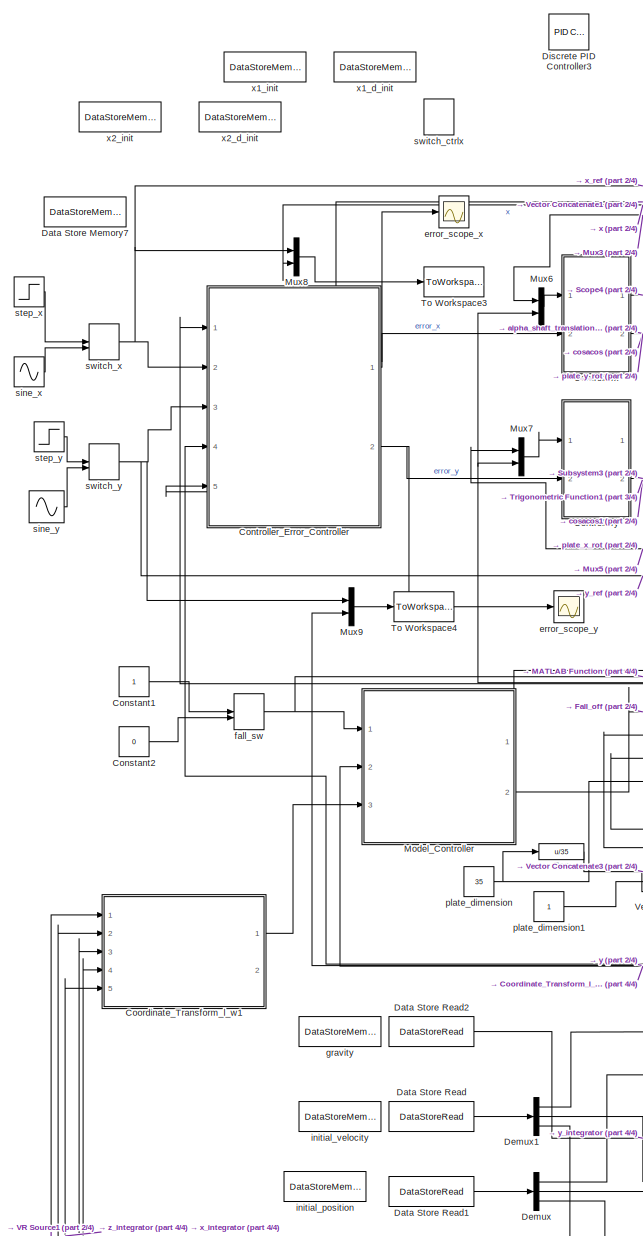
[diagram: root canvas - part 1/4, left side, full height]
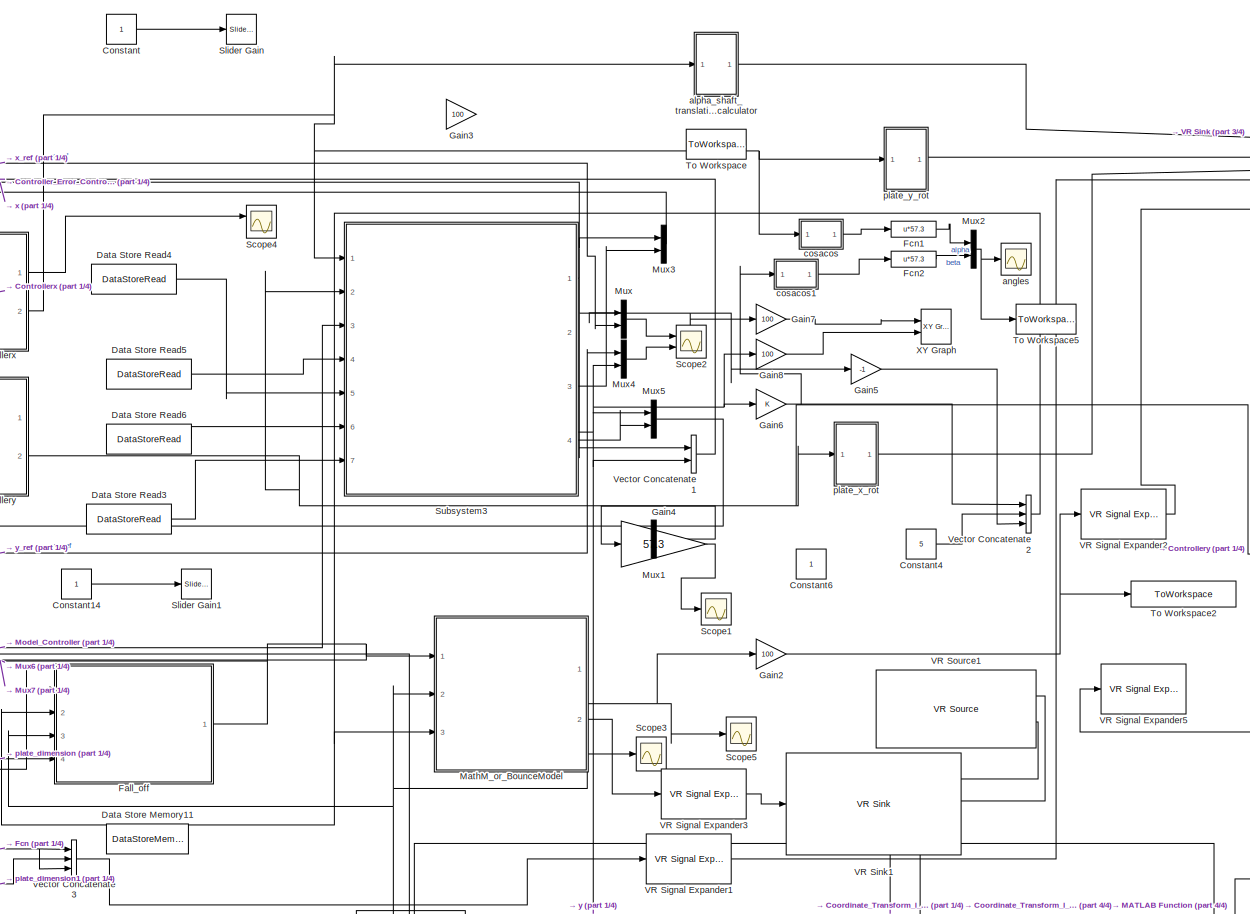
[diagram: root canvas - part 2/4, top center region]
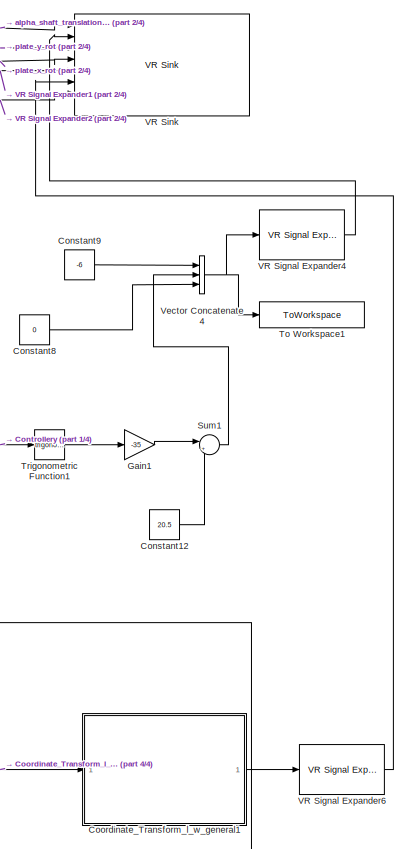
[diagram: root canvas - part 3/4, middle right region]
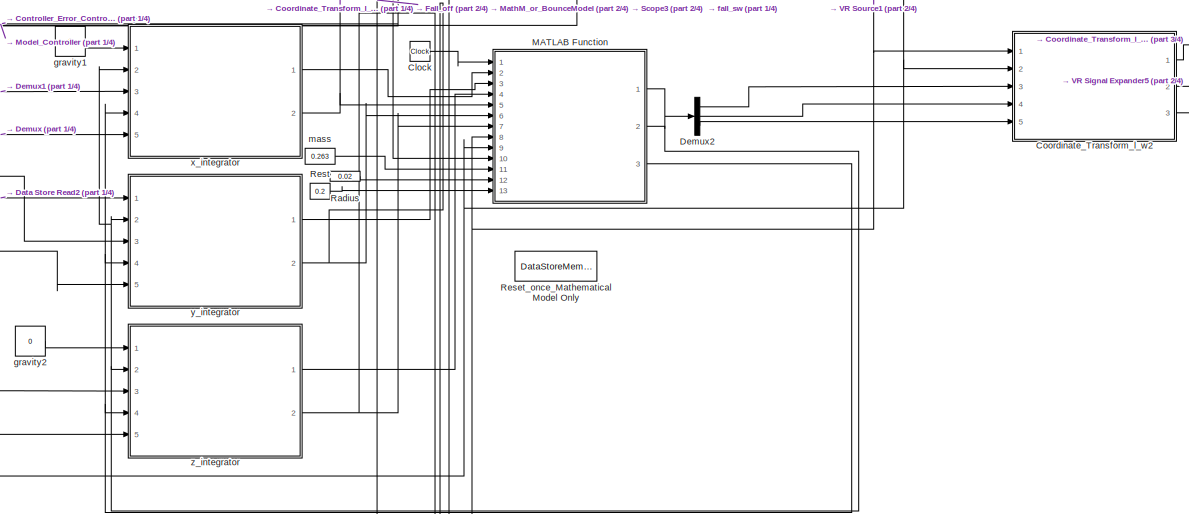
[diagram: root canvas - part 4/4, bottom center region]
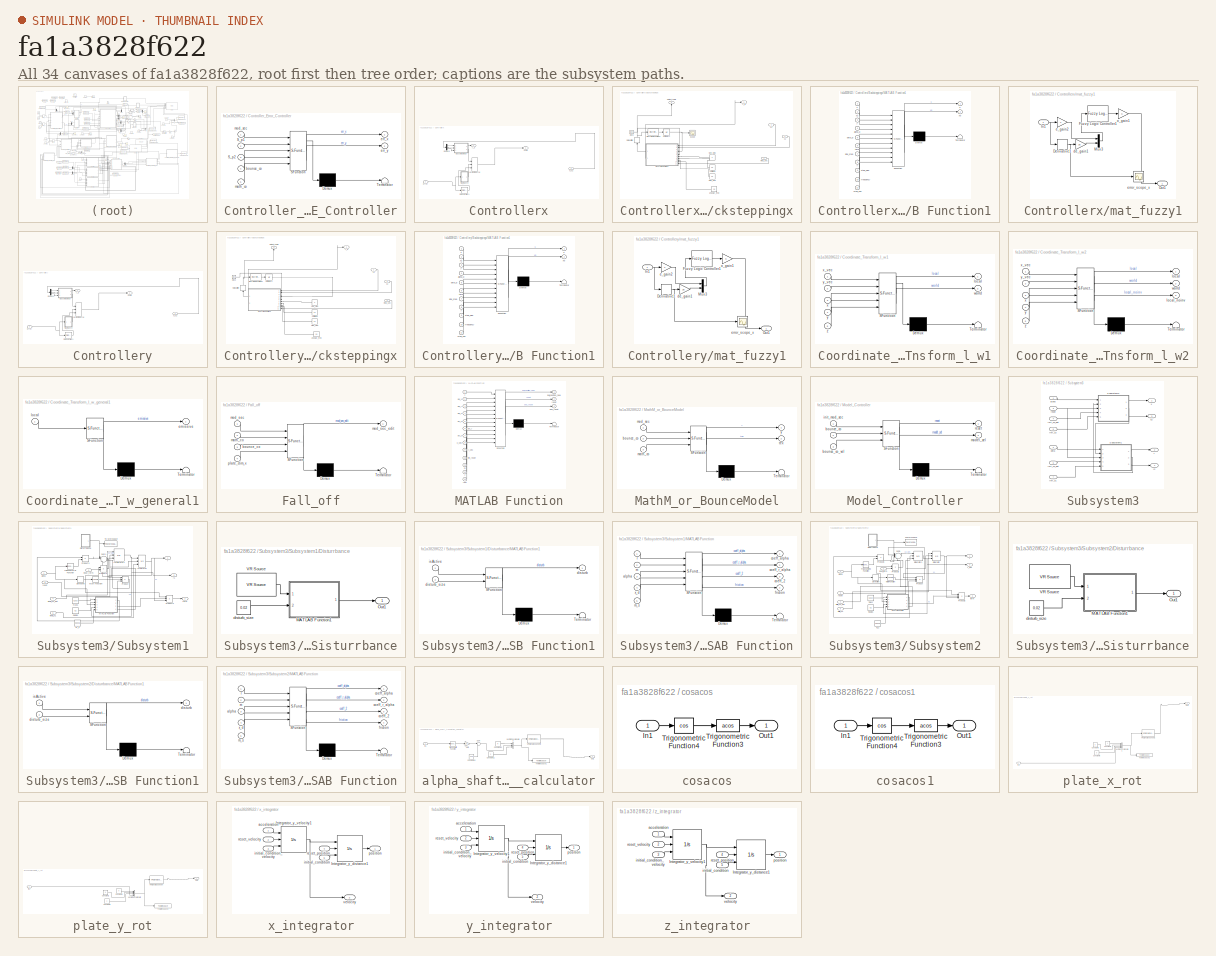
[diagram: thumbnail index - all 34 canvases of the model, root first then tree order]
MODEL slx_fa1a3828f622
KIND model
CONFIG AbsTol = auto
CONFIG FixedStep = T
CONFIG MaxStep = auto
CONFIG MinStep = auto
CONFIG RelTol = 1e-3
CONFIG SampleTimeConstraint = Unconstrained
CONFIG Solver = ode3
CONFIG SolverMode = Auto
CONFIG SolverName = ode3
CONFIG StartTime = 0.0
CONFIG StopTime = 100
BLOCK [Clock] Clock
BLOCK [Constant] Constant
  Commented = on
BLOCK [Constant] Constant1
BLOCK [Constant] Constant12
  Value = 20.5
BLOCK [Constant] Constant14
  Commented = on
BLOCK [Constant] Constant2
  Value = 0
BLOCK [Constant] Constant4
  Value = 5
BLOCK [Constant] Constant6
BLOCK [Constant] Constant8
  Value = 0
BLOCK [Constant] Constant9
  Value = -6
BLOCK [SubSystem] Controller_Error_Controller
  ErrorFcn = Stateflow.Translate.translate
  PermitHierarchicalResolution = ExplicitOnly
  Ports = [5, 2]
  RequestExecContextInheritance = off
  SFBlockType = MATLAB Function
  TreatAsAtomicUnit = on
  Variant = off
BLOCK [Demux] Controller_Error_Controller/ Demux 
  Outputs = 1
  Ports = [1, 1]
BLOCK [S-Function] Controller_Error_Controller/ SFunction 
  EnableBusSupport = on
  FunctionName = sf_sfun
  PortCounts = [5 3]
  Ports = [5, 3]
  SFunctionDeploymentMode = off
  Tag = Stateflow S-Function ballonplate_correctordinates 4
BLOCK [Terminator] Controller_Error_Controller/ Terminator 
BLOCK [Inport] Controller_Error_Controller/S_p1
  IconDisplay = Port number
  Port = 2
BLOCK [Inport] Controller_Error_Controller/S_p2
  IconDisplay = Port number
  Port = 3
BLOCK [Inport] Controller_Error_Controller/bounce_co
  IconDisplay = Port number
  Port = 4
BLOCK [Outport] Controller_Error_Controller/err_x
  IconDisplay = Port number
BLOCK [Outport] Controller_Error_Controller/err_y
  IconDisplay = Port number
  Port = 2
BLOCK [Inport] Controller_Error_Controller/math_co
  IconDisplay = Port number
  Port = 5
BLOCK [Inport] Controller_Error_Controller/mod_sec
  IconDisplay = Port number
BLOCK [SubSystem] Controllerx
  Ports = [2, 2]
  RequestExecContextInheritance = off
  Variant = off
BLOCK [SubSystem] Controllerx/Backsteppingx
  Commented = on
  Ports = [3, 2]
  RequestExecContextInheritance = off
  Variant = off
BLOCK [Constant] Controllerx/Backsteppingx/Amplitude
  Value = 0.1
BLOCK [Clock] Controllerx/Backsteppingx/Clock
BLOCK [Reference] Controllerx/Backsteppingx/Discrete Derivative1  REF=simulink/Discrete/Discrete Derivative
  Ports = [1, 1]
  SourceBlock = simulink/Discrete/Discrete Derivative
  SourceType = Discrete Derivative
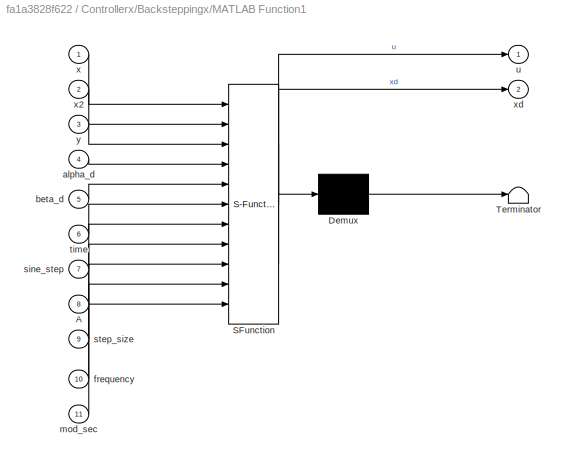
BLOCK [SubSystem] Controllerx/Backsteppingx/MATLAB Function1
  ErrorFcn = Stateflow.Translate.translate
  PermitHierarchicalResolution = ExplicitOnly
  Ports = [11, 2]
  RequestExecContextInheritance = off
  SFBlockType = MATLAB Function
  TreatAsAtomicUnit = on
  Variant = off
BLOCK [Demux] Controllerx/Backsteppingx/MATLAB Function1/ Demux 
  Outputs = 1
  Ports = [1, 1]
BLOCK [S-Function] Controllerx/Backsteppingx/MATLAB Function1/ SFunction 
  EnableBusSupport = on
  FunctionName = sf_sfun
  PortCounts = [11 3]
  Ports = [11, 3]
  SFunctionDeploymentMode = off
  Tag = Stateflow S-Function ballonplate_correctordinates 7
BLOCK [Terminator] Controllerx/Backsteppingx/MATLAB Function1/ Terminator 
BLOCK [Inport] Controllerx/Backsteppingx/MATLAB Function1/A
  IconDisplay = Port number
  Port = 8
BLOCK [Inport] Controllerx/Backsteppingx/MATLAB Function1/alpha_d
  IconDisplay = Port number
  Port = 4
BLOCK [Inport] Controllerx/Backsteppingx/MATLAB Function1/beta_d
  IconDisplay = Port number
  Port = 5
BLOCK [Inport] Controllerx/Backsteppingx/MATLAB Function1/frequency
  IconDisplay = Port number
  Port = 10
BLOCK [Inport] Controllerx/Backsteppingx/MATLAB Function1/mod_sec
  IconDisplay = Port number
  Port = 11
BLOCK [Inport] Controllerx/Backsteppingx/MATLAB Function1/sine_step
  IconDisplay = Port number
  Port = 7
BLOCK [Inport] Controllerx/Backsteppingx/MATLAB Function1/step_size
  IconDisplay = Port number
  Port = 9
BLOCK [Inport] Controllerx/Backsteppingx/MATLAB Function1/time
  IconDisplay = Port number
  Port = 6
BLOCK [Outport] Controllerx/Backsteppingx/MATLAB Function1/u
  IconDisplay = Port number
BLOCK [Inport] Controllerx/Backsteppingx/MATLAB Function1/x
  IconDisplay = Port number
BLOCK [Inport] Controllerx/Backsteppingx/MATLAB Function1/x2
  IconDisplay = Port number
  Port = 2
BLOCK [Outport] Controllerx/Backsteppingx/MATLAB Function1/xd
  IconDisplay = Port number
  Port = 2
BLOCK [Inport] Controllerx/Backsteppingx/MATLAB Function1/y
  IconDisplay = Port number
  Port = 3
BLOCK [Outport] Controllerx/Backsteppingx/Output_Angle
  IconDisplay = Port number
  Port = 2
BLOCK [RateLimiter] Controllerx/Backsteppingx/Rate Limiter
  SampleTimeMode = inherited
BLOCK [Scope] Controllerx/Backsteppingx/Scope
  Ports = [1]
  ScopeSpecificationString = Simulink.scopes.TimeScopeBlockCfg('CurrentConfiguration', extmgr.ConfigurationSet(extmgr.Configuration('Core','General UI',true),extmgr.Configuration('Core','Source UI',true),extmgr.Configuration('Sources','WiredSimulink',true,'DataLoggingVariableName','ScopeData1'),extmgr.Configuration('Visuals','Time Domain',true,'SerializedDisplays',{struct('MinYLimReal','-1.25','MaxYLimReal','1.25','YLabelReal...<+1352ch>
BLOCK [UnitDelay] Controllerx/Backsteppingx/Unit Delay2
  InputProcessing = Elements as channels (sample based)
  SampleTime = -1
BLOCK [Constant] Controllerx/Backsteppingx/angular_freq
  Value = 0.5
BLOCK [Inport] Controllerx/Backsteppingx/mod_sec
  IconDisplay = Port number
  Port = 3
BLOCK [Constant] Controllerx/Backsteppingx/sine_step
  Value = 2
BLOCK [Constant] Controllerx/Backsteppingx/step_size
  Value = 0.1
BLOCK [Inport] Controllerx/Backsteppingx/x1
  IconDisplay = Port number
BLOCK [Inport] Controllerx/Backsteppingx/x2
  IconDisplay = Port number
  Port = 2
BLOCK [Outport] Controllerx/Backsteppingx/y_d
  IconDisplay = Port number
BLOCK [Demux] Controllerx/Demux3
  DisplayOption = bar
  Outputs = 3
  Ports = [1, 3]
BLOCK [Reference] Controllerx/PID Controller1  REF=simulink/Continuous/PID Controller
  Ports = [1, 1]
  SourceBlock = simulink/Continuous/PID Controller
  SourceType = PID 1dof
BLOCK [VariantSource] Controllerx/Variant Source
  Ports = [3, 1]
BLOCK [Outport] Controllerx/angle
  IconDisplay = Port number
  Port = 2
BLOCK [Inport] Controllerx/error
  IconDisplay = Port number
  Port = 2
BLOCK [SubSystem] Controllerx/mat_fuzzy1
  Ports = [1, 1]
  RequestExecContextInheritance = off
  Variant = off
BLOCK [Derivative] Controllerx/mat_fuzzy1/Derivative1
BLOCK [Reference] Controllerx/mat_fuzzy1/Fuzzy Logic Controller1  REF=fuzblock/Fuzzy Logic   (lib defined in mdl_858b3b3e7478)
Controller
  Ports = [1, 1]
  SourceBlock = fuzblock/Fuzzy Logic \nController
  SourceType = FIS
BLOCK [Inport] Controllerx/mat_fuzzy1/In1
  IconDisplay = Port number
BLOCK [Mux] Controllerx/mat_fuzzy1/Mux3
  DisplayOption = bar
  Inputs = 2
  Ports = [2, 1]
BLOCK [Outport] Controllerx/mat_fuzzy1/Out1
  IconDisplay = Port number
BLOCK [Gain] Controllerx/mat_fuzzy1/de_gain1
  Gain = 25
  OutDataTypeStr = Inherit: Inherit via internal rule
  ParamDataTypeStr = Inherit: Inherit via internal rule
  SaturateOnIntegerOverflow = off
BLOCK [Gain] Controllerx/mat_fuzzy1/e_gain2
  Gain = 4
  OutDataTypeStr = Inherit: Inherit via internal rule
  ParamDataTypeStr = Inherit: Inherit via internal rule
  SaturateOnIntegerOverflow = off
BLOCK [Scope] Controllerx/mat_fuzzy1/error_scope_x
  Ports = [1]
  ScopeSpecificationString = Simulink.scopes.TimeScopeBlockCfg('CurrentConfiguration', extmgr.ConfigurationSet(extmgr.Configuration('Core','General UI',true),extmgr.Configuration('Core','Source UI',true),extmgr.Configuration('Sources','WiredSimulink',true,'DataLoggingVariableName','ScopeData3','DataLoggingSaveFormat','StructureWithTime','DataLoggingDecimation','1','DataLoggingDecimateData',true),extmgr.Configuration('Visuals'...<+1731ch>
BLOCK [Gain] Controllerx/mat_fuzzy1/o_gain1
  OutDataTypeStr = Inherit: Inherit via internal rule
  ParamDataTypeStr = Inherit: Inherit via internal rule
  SaturateOnIntegerOverflow = off
BLOCK [Inport] Controllerx/x1x2
  IconDisplay = Port number
BLOCK [Outport] Controllerx/y_d
  IconDisplay = Port number
BLOCK [SubSystem] Controllery
  Ports = [2, 2]
  RequestExecContextInheritance = off
  Variant = off
BLOCK [SubSystem] Controllery/Backsteppingx
  Commented = on
  Ports = [3, 2]
  RequestExecContextInheritance = off
  Variant = off
BLOCK [Constant] Controllery/Backsteppingx/Amplitude
  Value = 0.1
BLOCK [Clock] Controllery/Backsteppingx/Clock
BLOCK [Reference] Controllery/Backsteppingx/Discrete Derivative1  REF=simulink/Discrete/Discrete Derivative
  Ports = [1, 1]
  SourceBlock = simulink/Discrete/Discrete Derivative
  SourceType = Discrete Derivative
BLOCK [SubSystem] Controllery/Backsteppingx/MATLAB Function1
  ErrorFcn = Stateflow.Translate.translate
  PermitHierarchicalResolution = ExplicitOnly
  Ports = [11, 2]
  RequestExecContextInheritance = off
  SFBlockType = MATLAB Function
  TreatAsAtomicUnit = on
  Variant = off
BLOCK [Demux] Controllery/Backsteppingx/MATLAB Function1/ Demux 
  Outputs = 1
  Ports = [1, 1]
BLOCK [S-Function] Controllery/Backsteppingx/MATLAB Function1/ SFunction 
  EnableBusSupport = on
  FunctionName = sf_sfun
  PortCounts = [11 3]
  Ports = [11, 3]
  SFunctionDeploymentMode = off
  Tag = Stateflow S-Function ballonplate_correctordinates 12
BLOCK [Terminator] Controllery/Backsteppingx/MATLAB Function1/ Terminator 
BLOCK [Inport] Controllery/Backsteppingx/MATLAB Function1/A
  IconDisplay = Port number
  Port = 8
BLOCK [Inport] Controllery/Backsteppingx/MATLAB Function1/alpha_d
  IconDisplay = Port number
  Port = 4
BLOCK [Inport] Controllery/Backsteppingx/MATLAB Function1/beta_d
  IconDisplay = Port number
  Port = 5
BLOCK [Inport] Controllery/Backsteppingx/MATLAB Function1/frequency
  IconDisplay = Port number
  Port = 10
BLOCK [Inport] Controllery/Backsteppingx/MATLAB Function1/mod_sec
  IconDisplay = Port number
  Port = 11
BLOCK [Inport] Controllery/Backsteppingx/MATLAB Function1/sine_step
  IconDisplay = Port number
  Port = 7
BLOCK [Inport] Controllery/Backsteppingx/MATLAB Function1/step_size
  IconDisplay = Port number
  Port = 9
BLOCK [Inport] Controllery/Backsteppingx/MATLAB Function1/time
  IconDisplay = Port number
  Port = 6
BLOCK [Outport] Controllery/Backsteppingx/MATLAB Function1/u
  IconDisplay = Port number
BLOCK [Inport] Controllery/Backsteppingx/MATLAB Function1/x
  IconDisplay = Port number
BLOCK [Inport] Controllery/Backsteppingx/MATLAB Function1/x2
  IconDisplay = Port number
  Port = 2
BLOCK [Outport] Controllery/Backsteppingx/MATLAB Function1/xd
  IconDisplay = Port number
  Port = 2
BLOCK [Inport] Controllery/Backsteppingx/MATLAB Function1/y
  IconDisplay = Port number
  Port = 3
BLOCK [Outport] Controllery/Backsteppingx/Output_Angle
  IconDisplay = Port number
  Port = 2
BLOCK [RateLimiter] Controllery/Backsteppingx/Rate Limiter
  SampleTimeMode = inherited
BLOCK [UnitDelay] Controllery/Backsteppingx/Unit Delay2
  InputProcessing = Elements as channels (sample based)
  SampleTime = -1
BLOCK [Constant] Controllery/Backsteppingx/angular_freq
  Value = 0.5
BLOCK [Inport] Controllery/Backsteppingx/mod_sec
  IconDisplay = Port number
  Port = 3
BLOCK [Constant] Controllery/Backsteppingx/sine_step
  Value = 3
BLOCK [Constant] Controllery/Backsteppingx/step_size
  Value = 0.1
BLOCK [Inport] Controllery/Backsteppingx/x1
  IconDisplay = Port number
BLOCK [Inport] Controllery/Backsteppingx/x2
  IconDisplay = Port number
  Port = 2
BLOCK [Outport] Controllery/Backsteppingx/y_d
  IconDisplay = Port number
BLOCK [Demux] Controllery/Demux3
  DisplayOption = bar
  Outputs = 3
  Ports = [1, 3]
BLOCK [Reference] Controllery/PID Controller1  REF=simulink/Continuous/PID Controller
  Ports = [1, 1]
  SourceBlock = simulink/Continuous/PID Controller
  SourceType = PID 1dof
BLOCK [VariantSource] Controllery/Variant Source
  Ports = [3, 1]
BLOCK [Outport] Controllery/angle
  IconDisplay = Port number
  Port = 2
BLOCK [Inport] Controllery/error
  IconDisplay = Port number
  Port = 2
BLOCK [SubSystem] Controllery/mat_fuzzy1
  Ports = [1, 1]
  RequestExecContextInheritance = off
  Variant = off
BLOCK [Derivative] Controllery/mat_fuzzy1/Derivative1
BLOCK [Reference] Controllery/mat_fuzzy1/Fuzzy Logic Controller1  REF=fuzblock/Fuzzy Logic   (lib defined in mdl_858b3b3e7478)
Controller
  Ports = [1, 1]
  SourceBlock = fuzblock/Fuzzy Logic \nController
  SourceType = FIS
BLOCK [Inport] Controllery/mat_fuzzy1/In1
  IconDisplay = Port number
BLOCK [Mux] Controllery/mat_fuzzy1/Mux3
  DisplayOption = bar
  Inputs = 2
  Ports = [2, 1]
BLOCK [Outport] Controllery/mat_fuzzy1/Out1
  IconDisplay = Port number
BLOCK [Gain] Controllery/mat_fuzzy1/de_gain1
  Gain = 25
  OutDataTypeStr = Inherit: Inherit via internal rule
  ParamDataTypeStr = Inherit: Inherit via internal rule
  SaturateOnIntegerOverflow = off
BLOCK [Gain] Controllery/mat_fuzzy1/e_gain2
  Gain = 4
  OutDataTypeStr = Inherit: Inherit via internal rule
  ParamDataTypeStr = Inherit: Inherit via internal rule
  SaturateOnIntegerOverflow = off
BLOCK [Scope] Controllery/mat_fuzzy1/error_scope_x
  Ports = [1]
  ScopeSpecificationString = Simulink.scopes.TimeScopeBlockCfg('CurrentConfiguration', extmgr.ConfigurationSet(extmgr.Configuration('Core','General UI',true),extmgr.Configuration('Core','Source UI',true),extmgr.Configuration('Sources','WiredSimulink',true,'DataLoggingVariableName','ScopeData3','DataLoggingSaveFormat','StructureWithTime','DataLoggingDecimation','1','DataLoggingDecimateData',true),extmgr.Configuration('Visuals'...<+1731ch>
BLOCK [Gain] Controllery/mat_fuzzy1/o_gain1
  OutDataTypeStr = Inherit: Inherit via internal rule
  ParamDataTypeStr = Inherit: Inherit via internal rule
  SaturateOnIntegerOverflow = off
BLOCK [Inport] Controllery/x1x2
  IconDisplay = Port number
BLOCK [Outport] Controllery/y_d
  IconDisplay = Port number
BLOCK [SubSystem] Coordinate_Transform_l_w1
  ErrorFcn = Stateflow.Translate.translate
  PermitHierarchicalResolution = ExplicitOnly
  Ports = [5, 2]
  RequestExecContextInheritance = off
  SFBlockType = MATLAB Function
  TreatAsAtomicUnit = on
  Variant = off
BLOCK [Demux] Coordinate_Transform_l_w1/ Demux 
  Outputs = 1
  Ports = [1, 1]
BLOCK [S-Function] Coordinate_Transform_l_w1/ SFunction 
  EnableBusSupport = on
  FunctionName = sf_sfun
  PortCounts = [5 3]
  Ports = [5, 3]
  SFunctionDeploymentMode = off
  Tag = Stateflow S-Function ballonplate_correctordinates 10
BLOCK [Terminator] Coordinate_Transform_l_w1/ Terminator 
BLOCK [Outport] Coordinate_Transform_l_w1/local
  IconDisplay = Port number
BLOCK [Outport] Coordinate_Transform_l_w1/world
  IconDisplay = Port number
  Port = 2
BLOCK [Inport] Coordinate_Transform_l_w1/x
  IconDisplay = Port number
  Port = 3
BLOCK [Inport] Coordinate_Transform_l_w1/x_vec
  IconDisplay = Port number
BLOCK [Inport] Coordinate_Transform_l_w1/y
  IconDisplay = Port number
  Port = 4
BLOCK [Inport] Coordinate_Transform_l_w1/y_vec
  IconDisplay = Port number
  Port = 2
BLOCK [Inport] Coordinate_Transform_l_w1/z
  IconDisplay = Port number
  Port = 5
BLOCK [SubSystem] Coordinate_Transform_l_w2
  ErrorFcn = Stateflow.Translate.translate
  PermitHierarchicalResolution = ExplicitOnly
  Ports = [5, 3]
  RequestExecContextInheritance = off
  SFBlockType = MATLAB Function
  TreatAsAtomicUnit = on
  Variant = off
BLOCK [Demux] Coordinate_Transform_l_w2/ Demux 
  Outputs = 1
  Ports = [1, 1]
BLOCK [S-Function] Coordinate_Transform_l_w2/ SFunction 
  EnableBusSupport = on
  FunctionName = sf_sfun
  PortCounts = [5 4]
  Ports = [5, 4]
  SFunctionDeploymentMode = off
  Tag = Stateflow S-Function ballonplate_correctordinates 6
BLOCK [Terminator] Coordinate_Transform_l_w2/ Terminator 
BLOCK [Outport] Coordinate_Transform_l_w2/local
  IconDisplay = Port number
BLOCK [Outport] Coordinate_Transform_l_w2/local_noinv
  IconDisplay = Port number
  Port = 3
BLOCK [Outport] Coordinate_Transform_l_w2/world
  IconDisplay = Port number
  Port = 2
BLOCK [Inport] Coordinate_Transform_l_w2/x
  IconDisplay = Port number
  Port = 3
BLOCK [Inport] Coordinate_Transform_l_w2/x_vec
  IconDisplay = Port number
BLOCK [Inport] Coordinate_Transform_l_w2/y
  IconDisplay = Port number
  Port = 4
BLOCK [Inport] Coordinate_Transform_l_w2/y_vec
  IconDisplay = Port number
  Port = 2
BLOCK [Inport] Coordinate_Transform_l_w2/z
  IconDisplay = Port number
  Port = 5
BLOCK [SubSystem] Coordinate_Transform_l_w_general1
  ErrorFcn = Stateflow.Translate.translate
  PermitHierarchicalResolution = ExplicitOnly
  Ports = [1, 1]
  RequestExecContextInheritance = off
  SFBlockType = MATLAB Function
  TreatAsAtomicUnit = on
  Variant = off
BLOCK [Demux] Coordinate_Transform_l_w_general1/ Demux 
  Outputs = 1
  Ports = [1, 1]
BLOCK [S-Function] Coordinate_Transform_l_w_general1/ SFunction 
  EnableBusSupport = on
  FunctionName = sf_sfun
  PortCounts = [1 2]
  Ports = [1, 2]
  SFunctionDeploymentMode = off
  Tag = Stateflow S-Function ballonplate_correctordinates 8
BLOCK [Terminator] Coordinate_Transform_l_w_general1/ Terminator 
BLOCK [Outport] Coordinate_Transform_l_w_general1/emissive
  IconDisplay = Port number
BLOCK [Inport] Coordinate_Transform_l_w_general1/local
  IconDisplay = Port number
BLOCK [DataStoreMemory] Data Store Memory11
  DataStoreName = falloff_toggle
  OutDataTypeStr = double
  ShowAdditionalParam = off
  SignalType = real
BLOCK [DataStoreMemory] Data Store Memory7
  DataStoreName = count
  OutDataTypeStr = double
  ShowAdditionalParam = off
  SignalType = real
BLOCK [DataStoreRead] Data Store Read
  DataStoreElements = initial_velocity(:)
  DataStoreName = initial_velocity
  Ports = [0, 1]
BLOCK [DataStoreRead] Data Store Read1
  DataStoreElements = initial_position(:)
  DataStoreName = initial_position
  Ports = [0, 1]
BLOCK [DataStoreRead] Data Store Read2
  DataStoreElements = gravity
  DataStoreName = gravity
  Ports = [0, 1]
BLOCK [DataStoreRead] Data Store Read3
  DataStoreElements = x1_init
  DataStoreName = x1_init
  Ports = [0, 1]
BLOCK [DataStoreRead] Data Store Read4
  DataStoreElements = x2_init
  DataStoreName = x2_init
  Ports = [0, 1]
BLOCK [DataStoreRead] Data Store Read5
  DataStoreElements = x2_d_init
  DataStoreName = x2_d_init
  Ports = [0, 1]
BLOCK [DataStoreRead] Data Store Read6
  DataStoreElements = x1_d_init
  DataStoreName = x1_d_init
  Ports = [0, 1]
BLOCK [Demux] Demux
  DisplayOption = bar
  Outputs = 3
  Ports = [1, 3]
BLOCK [Demux] Demux1
  DisplayOption = bar
  Outputs = 3
  Ports = [1, 3]
BLOCK [Demux] Demux2
  DisplayOption = bar
  Outputs = 3
  Ports = [1, 3]
BLOCK [Reference] Discrete PID Controller3  REF=simulink/Continuous/PID Controller
  Commented = on
  Ports = [1, 1]
  SourceBlock = simulink/Continuous/PID Controller
  SourceType = PID 1dof
BLOCK [SubSystem] Fall_off
  ErrorFcn = Stateflow.Translate.translate
  PermitHierarchicalResolution = ExplicitOnly
  Ports = [4, 1]
  RequestExecContextInheritance = off
  SFBlockType = MATLAB Function
  TreatAsAtomicUnit = on
  Variant = off
BLOCK [Demux] Fall_off/ Demux 
  Outputs = 1
  Ports = [1, 1]
BLOCK [S-Function] Fall_off/ SFunction 
  EnableBusSupport = on
  FunctionName = sf_sfun
  PortCounts = [4 2]
  Ports = [4, 2]
  SFunctionDeploymentMode = off
  Tag = Stateflow S-Function ballonplate_correctordinates 11
BLOCK [Terminator] Fall_off/ Terminator 
BLOCK [Inport] Fall_off/bounce_co
  IconDisplay = Port number
  Port = 3
BLOCK [Inport] Fall_off/math_co
  IconDisplay = Port number
  Port = 2
BLOCK [Inport] Fall_off/mod_sec
  IconDisplay = Port number
BLOCK [Outport] Fall_off/mod_sec_edit
  IconDisplay = Port number
BLOCK [Inport] Fall_off/plate_dim_x
  IconDisplay = Port number
  Port = 4
BLOCK [Fcn] Fcn
  Expr = u/35
BLOCK [Fcn] Fcn1
  Expr = u*57.3
BLOCK [Fcn] Fcn2
  Expr = u*57.3
BLOCK [Gain] Gain1
  Gain = -35
  OutDataTypeStr = Inherit: Inherit via internal rule
  ParamDataTypeStr = Inherit: Inherit via internal rule
  SaturateOnIntegerOverflow = off
BLOCK [Gain] Gain2
  Gain = 100
  OutDataTypeStr = Inherit: Inherit via internal rule
  ParamDataTypeStr = Inherit: Inherit via internal rule
  SaturateOnIntegerOverflow = off
BLOCK [Gain] Gain3
  Commented = on
  Gain = 100
  OutDataTypeStr = Inherit: Inherit via internal rule
  ParamDataTypeStr = Inherit: Inherit via internal rule
  SaturateOnIntegerOverflow = off
BLOCK [Gain] Gain4
  Commented = on
  Gain = 57.3
  OutDataTypeStr = Inherit: Inherit via internal rule
  ParamDataTypeStr = Inherit: Inherit via internal rule
  SampleTime = T
  SaturateOnIntegerOverflow = off
BLOCK [Gain] Gain5
  Gain = -1
  OutDataTypeStr = Inherit: Inherit via internal rule
  ParamDataTypeStr = Inherit: Inherit via internal rule
  SaturateOnIntegerOverflow = off
BLOCK [Gain] Gain6
  OutDataTypeStr = Inherit: Inherit via internal rule
  ParamDataTypeStr = Inherit: Inherit via internal rule
  SaturateOnIntegerOverflow = off
BLOCK [Gain] Gain7
  Gain = 100
  OutDataTypeStr = Inherit: Inherit via internal rule
  ParamDataTypeStr = Inherit: Inherit via internal rule
  SaturateOnIntegerOverflow = off
BLOCK [Gain] Gain8
  Gain = 100
  OutDataTypeStr = Inherit: Inherit via internal rule
  ParamDataTypeStr = Inherit: Inherit via internal rule
  SaturateOnIntegerOverflow = off
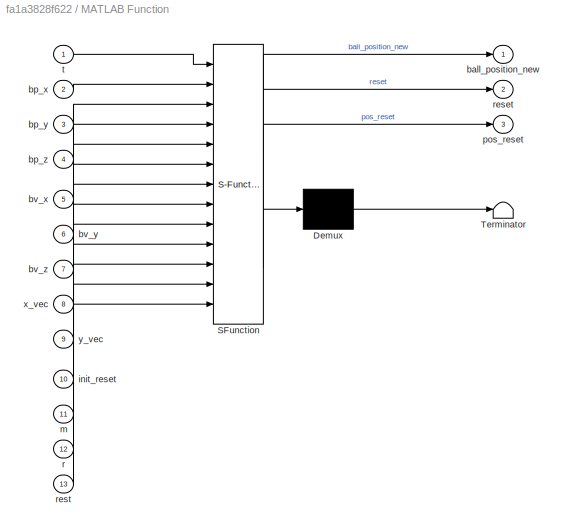
BLOCK [SubSystem] MATLAB Function
  ErrorFcn = Stateflow.Translate.translate
  PermitHierarchicalResolution = ExplicitOnly
  Ports = [13, 3]
  RequestExecContextInheritance = off
  SFBlockType = MATLAB Function
  TreatAsAtomicUnit = on
  Variant = off
BLOCK [Demux] MATLAB Function/ Demux 
  Outputs = 1
  Ports = [1, 1]
BLOCK [S-Function] MATLAB Function/ SFunction 
  EnableBusSupport = on
  FunctionName = sf_sfun
  PortCounts = [13 4]
  Ports = [13, 4]
  SFunctionDeploymentMode = off
  Tag = Stateflow S-Function ballonplate_correctordinates 9
BLOCK [Terminator] MATLAB Function/ Terminator 
BLOCK [Outport] MATLAB Function/ball_position_new
  IconDisplay = Port number
BLOCK [Inport] MATLAB Function/bp_x
  IconDisplay = Port number
  Port = 2
BLOCK [Inport] MATLAB Function/bp_y
  IconDisplay = Port number
  Port = 3
BLOCK [Inport] MATLAB Function/bp_z
  IconDisplay = Port number
  Port = 4
BLOCK [Inport] MATLAB Function/bv_x
  IconDisplay = Port number
  Port = 5
BLOCK [Inport] MATLAB Function/bv_y
  IconDisplay = Port number
  Port = 6
BLOCK [Inport] MATLAB Function/bv_z
  IconDisplay = Port number
  Port = 7
BLOCK [Inport] MATLAB Function/init_reset
  IconDisplay = Port number
  Port = 10
BLOCK [Inport] MATLAB Function/m
  IconDisplay = Port number
  Port = 11
BLOCK [Outport] MATLAB Function/pos_reset
  IconDisplay = Port number
  Port = 3
BLOCK [Inport] MATLAB Function/r
  IconDisplay = Port number
  Port = 12
BLOCK [Outport] MATLAB Function/reset
  IconDisplay = Port number
  Port = 2
BLOCK [Inport] MATLAB Function/rest
  IconDisplay = Port number
  Port = 13
BLOCK [Inport] MATLAB Function/t
  IconDisplay = Port number
BLOCK [Inport] MATLAB Function/x_vec
  IconDisplay = Port number
  Port = 8
BLOCK [Inport] MATLAB Function/y_vec
  IconDisplay = Port number
  Port = 9
BLOCK [SubSystem] MathM_or_BounceModel
  ErrorFcn = Stateflow.Translate.translate
  PermitHierarchicalResolution = ExplicitOnly
  Ports = [3, 2]
  RequestExecContextInheritance = off
  SFBlockType = MATLAB Function
  TreatAsAtomicUnit = on
  Variant = off
BLOCK [Demux] MathM_or_BounceModel/ Demux 
  Outputs = 1
  Ports = [1, 1]
BLOCK [S-Function] MathM_or_BounceModel/ SFunction 
  EnableBusSupport = on
  FunctionName = sf_sfun
  PortCounts = [3 3]
  Ports = [3, 3]
  SFunctionDeploymentMode = off
  Tag = Stateflow S-Function ballonplate_correctordinates 3
BLOCK [Terminator] MathM_or_BounceModel/ Terminator 
BLOCK [Inport] MathM_or_BounceModel/bounce_co
  IconDisplay = Port number
  Port = 2
BLOCK [Inport] MathM_or_BounceModel/math_co
  IconDisplay = Port number
  Port = 3
BLOCK [Inport] MathM_or_BounceModel/mod_sec
  IconDisplay = Port number
BLOCK [Outport] MathM_or_BounceModel/tex
  IconDisplay = Port number
  Port = 2
BLOCK [Outport] MathM_or_BounceModel/y
  IconDisplay = Port number
BLOCK [SubSystem] Model_Controller
  ErrorFcn = Stateflow.Translate.translate
  PermitHierarchicalResolution = ExplicitOnly
  Ports = [3, 2]
  RequestExecContextInheritance = off
  SFBlockType = MATLAB Function
  TreatAsAtomicUnit = on
  Variant = off
BLOCK [Demux] Model_Controller/ Demux 
  Outputs = 1
  Ports = [1, 1]
BLOCK [S-Function] Model_Controller/ SFunction 
  EnableBusSupport = on
  FunctionName = sf_sfun
  PortCounts = [3 3]
  Ports = [3, 3]
  SFunctionDeploymentMode = off
  Tag = Stateflow S-Function ballonplate_correctordinates 5
BLOCK [Terminator] Model_Controller/ Terminator 
BLOCK [Inport] Model_Controller/bounce_co
  IconDisplay = Port number
  Port = 2
BLOCK [Inport] Model_Controller/bounce_co_vel
  IconDisplay = Port number
  Port = 3
BLOCK [Inport] Model_Controller/init_mod_sec
  IconDisplay = Port number
BLOCK [Outport] Model_Controller/model_sel
  IconDisplay = Port number
  Port = 2
BLOCK [Outport] Model_Controller/reset
  IconDisplay = Port number
BLOCK [Mux] Mux
  DisplayOption = bar
  Inputs = 2
  Ports = [2, 1]
BLOCK [Mux] Mux1
  Commented = on
  DisplayOption = bar
  Inputs = 2
  Ports = [2, 1]
BLOCK [Mux] Mux2
  DisplayOption = bar
  Inputs = 2
  Ports = [2, 1]
BLOCK [Mux] Mux3
  DisplayOption = bar
  Inputs = 2
  Ports = [2, 1]
BLOCK [Mux] Mux4
  DisplayOption = bar
  Inputs = 2
  Ports = [2, 1]
BLOCK [Mux] Mux5
  DisplayOption = bar
  Inputs = 2
  Ports = [2, 1]
BLOCK [Mux] Mux6
  DisplayOption = bar
  Inputs = 2
  Ports = [2, 1]
BLOCK [Mux] Mux7
  DisplayOption = bar
  Inputs = 2
  Ports = [2, 1]
BLOCK [Mux] Mux8
  DisplayOption = bar
  Inputs = 2
  Ports = [2, 1]
BLOCK [Mux] Mux9
  DisplayOption = bar
  Inputs = 2
  Ports = [2, 1]
BLOCK [Constant] Radius
  Value = 0.02
BLOCK [DataStoreMemory] Reset_once_Mathematical Model Only
  DataStoreName = count_mm
  OutDataTypeStr = double
  ShowAdditionalParam = off
  SignalType = real
BLOCK [Constant] Rest
  Value = 0.2
BLOCK [Scope] Scope1
  Commented = on
  Ports = [1]
  ScopeSpecificationString = Simulink.scopes.TimeScopeBlockCfg('CurrentConfiguration', extmgr.ConfigurationSet(extmgr.Configuration('Core','General UI',true),extmgr.Configuration('Core','Source UI',true),extmgr.Configuration('Sources','WiredSimulink',true,'DataLoggingVariableName','ScopeData1','DataLoggingSaveFormat','StructureWithTime','DataLoggingLimitDataPoints',true,'DataLoggingDecimation','1','DataLoggingDecimateData',tr...<+1638ch>
BLOCK [Scope] Scope2
  NumInputPorts = 2
  Ports = [2]
  ScopeSpecificationString = Simulink.scopes.TimeScopeBlockCfg('CurrentConfiguration', extmgr.ConfigurationSet(extmgr.Configuration('Core','General UI',true),extmgr.Configuration('Core','Source UI',true),extmgr.Configuration('Sources','WiredSimulink',true,'DataLoggingVariableName','ScopeData2','DataLoggingSaveFormat','StructureWithTime','DataLoggingDecimation','1','DataLoggingDecimateData',true),extmgr.Configuration('Visuals'...<+2379ch>
BLOCK [Scope] Scope3
  Ports = [1]
  ScopeSpecificationString = Simulink.scopes.TimeScopeBlockCfg('CurrentConfiguration', extmgr.ConfigurationSet(extmgr.Configuration('Core','General UI',true),extmgr.Configuration('Core','Source UI',true),extmgr.Configuration('Sources','WiredSimulink',true,'DataLoggingSaveFormat','StructureWithTime','DataLoggingLimitDataPoints',true,'DataLoggingDecimation','1','DataLoggingDecimateData',true),extmgr.Configuration('Visuals','Tim...<+1782ch>
BLOCK [Scope] Scope4
  NumInputPorts = 2
  Ports = [2]
  ScopeSpecificationString = Simulink.scopes.TimeScopeBlockCfg('CurrentConfiguration', extmgr.ConfigurationSet(extmgr.Configuration('Core','General UI',true),extmgr.Configuration('Core','Source UI',true),extmgr.Configuration('Sources','WiredSimulink',true,'DataLoggingVariableName','ScopeData1','DataLoggingSaveFormat','StructureWithTime','DataLoggingDecimation','1','DataLoggingDecimateData',true),extmgr.Configuration('Visuals'...<+2396ch>
BLOCK [Scope] Scope5
  Ports = [1]
  ScopeSpecificationString = Simulink.scopes.TimeScopeBlockCfg('CurrentConfiguration', extmgr.ConfigurationSet(extmgr.Configuration('Core','General UI',true),extmgr.Configuration('Core','Source UI',true),extmgr.Configuration('Sources','WiredSimulink',true,'DataLoggingSaveFormat','StructureWithTime','DataLoggingDecimation','1','DataLoggingDecimateData',true,'DataLoggingVariableName','ScopeData1'),extmgr.Configuration('Visuals'...<+1760ch>
BLOCK [Reference] Slider Gain  REF=simulink/Math
Operations/Slider
Gain
  Commented = on
  Ports = [1, 1]
  SourceBlock = simulink/Math\nOperations/Slider\nGain
  SourceType = Slider Gain
BLOCK [Reference] Slider Gain1  REF=simulink/Math
Operations/Slider
Gain
  Commented = on
  Ports = [1, 1]
  SourceBlock = simulink/Math\nOperations/Slider\nGain
  SourceType = Slider Gain
BLOCK [SubSystem] Subsystem3
  Ports = [7, 4]
  RequestExecContextInheritance = off
  Variant = off
BLOCK [SubSystem] Subsystem3/Subsystem1
  Ports = [5, 3]
  RequestExecContextInheritance = off
  Variant = off
BLOCK [Derivative] Subsystem3/Subsystem1/Derivative
BLOCK [SubSystem] Subsystem3/Subsystem1/Disturrbance
  Ports = [0, 1]
  RequestExecContextInheritance = off
  Variant = off
BLOCK [SubSystem] Subsystem3/Subsystem1/Disturrbance/MATLAB Function1
  ErrorFcn = Stateflow.Translate.translate
  PermitHierarchicalResolution = ExplicitOnly
  Ports = [2, 1]
  RequestExecContextInheritance = off
  SFBlockType = MATLAB Function
  TreatAsAtomicUnit = on
  Variant = off
BLOCK [Demux] Subsystem3/Subsystem1/Disturrbance/MATLAB Function1/ Demux 
  Outputs = 1
  Ports = [1, 1]
BLOCK [S-Function] Subsystem3/Subsystem1/Disturrbance/MATLAB Function1/ SFunction 
  EnableBusSupport = on
  FunctionName = sf_sfun
  PortCounts = [2 2]
  Ports = [2, 2]
  SFunctionDeploymentMode = off
  Tag = Stateflow S-Function ballonplate_correctordinates 14
BLOCK [Terminator] Subsystem3/Subsystem1/Disturrbance/MATLAB Function1/ Terminator 
BLOCK [Outport] Subsystem3/Subsystem1/Disturrbance/MATLAB Function1/disturb
  IconDisplay = Port number
BLOCK [Inport] Subsystem3/Subsystem1/Disturrbance/MATLAB Function1/disturb_size
  IconDisplay = Port number
  Port = 2
BLOCK [Inport] Subsystem3/Subsystem1/Disturrbance/MATLAB Function1/isActive
  IconDisplay = Port number
BLOCK [Outport] Subsystem3/Subsystem1/Disturrbance/Out1
  IconDisplay = Port number
BLOCK [Reference] Subsystem3/Subsystem1/Disturrbance/VR Source  REF=vrlib/VR Source
  InstantiateOnLoad = on
  Ports = [0, 1]
  SourceBlock = vrlib/VR Source
  SourceType = Virtual Reality Source
BLOCK [Constant] Subsystem3/Subsystem1/Disturrbance/disturb_size
  Value = 0.02
BLOCK [Integrator] Subsystem3/Subsystem1/Integrator
  ExternalReset = rising
  InitialCondition = 0.004427
  InitialConditionSource = external
  Ports = [3, 1]
BLOCK [Integrator] Subsystem3/Subsystem1/Integrator1
  ExternalReset = rising
  InitialConditionSource = external
  Ports = [3, 1]
BLOCK [SubSystem] Subsystem3/Subsystem1/MATLAB Function
  ErrorFcn = Stateflow.Translate.translate
  PermitHierarchicalResolution = ExplicitOnly
  Ports = [5, 4]
  RequestExecContextInheritance = off
  SFBlockType = MATLAB Function
  TreatAsAtomicUnit = on
  Variant = off
BLOCK [Demux] Subsystem3/Subsystem1/MATLAB Function/ Demux 
  Outputs = 1
  Ports = [1, 1]
BLOCK [S-Function] Subsystem3/Subsystem1/MATLAB Function/ SFunction 
  EnableBusSupport = on
  FunctionName = sf_sfun
  PortCounts = [5 5]
  Ports = [5, 5]
  SFunctionDeploymentMode = off
  Tag = Stateflow S-Function ballonplate_correctordinates 1
BLOCK [Terminator] Subsystem3/Subsystem1/MATLAB Function/ Terminator 
BLOCK [Inport] Subsystem3/Subsystem1/MATLAB Function/alpha
  IconDisplay = Port number
  Port = 3
BLOCK [Outport] Subsystem3/Subsystem1/MATLAB Function/coeff_2
  IconDisplay = Port number
  Port = 3
BLOCK [Outport] Subsystem3/Subsystem1/MATLAB Function/coeff_alpha
  IconDisplay = Port number
BLOCK [Outport] Subsystem3/Subsystem1/MATLAB Function/coeff_r_alpha
  IconDisplay = Port number
  Port = 2
BLOCK [Outport] Subsystem3/Subsystem1/MATLAB Function/friction
  IconDisplay = Port number
  Port = 4
BLOCK [Inport] Subsystem3/Subsystem1/MATLAB Function/m
  IconDisplay = Port number
  Port = 2
BLOCK [Inport] Subsystem3/Subsystem1/MATLAB Function/m_s
  IconDisplay = Port number
  Port = 5
BLOCK [Inport] Subsystem3/Subsystem1/MATLAB Function/r
  IconDisplay = Port number
BLOCK [Inport] Subsystem3/Subsystem1/MATLAB Function/x_d
  IconDisplay = Port number
  Port = 4
BLOCK [Math] Subsystem3/Subsystem1/Math Function
  Operator = square
  Ports = [1, 1]
BLOCK [Product] Subsystem3/Subsystem1/Product
  InputSameDT = off
  Inputs = 3
  OutDataTypeStr = Inherit: Inherit via internal rule
  Ports = [3, 1]
  RndMeth = Floor
  SaturateOnIntegerOverflow = off
BLOCK [Product] Subsystem3/Subsystem1/Product1
  InputSameDT = off
  OutDataTypeStr = Inherit: Inherit via internal rule
  Ports = [2, 1]
  RndMeth = Floor
  SaturateOnIntegerOverflow = off
BLOCK [Product] Subsystem3/Subsystem1/Product2
  InputSameDT = off
  Inputs = 3
  OutDataTypeStr = Inherit: Inherit via internal rule
  Ports = [3, 1]
  RndMeth = Floor
  SaturateOnIntegerOverflow = off
BLOCK [Product] Subsystem3/Subsystem1/Product3
  InputSameDT = off
  OutDataTypeStr = Inherit: Inherit via internal rule
  Ports = [2, 1]
  RndMeth = Floor
  SaturateOnIntegerOverflow = off
BLOCK [Constant] Subsystem3/Subsystem1/Radius
  Value = 0.2
BLOCK [Sum] Subsystem3/Subsystem1/Sum1
  IconShape = round
  InputSameDT = off
  Inputs = |+++++
  OutDataTypeStr = Inherit: Inherit via internal rule
  Ports = [5, 1]
  SaturateOnIntegerOverflow = off
BLOCK [ToWorkspace] Subsystem3/Subsystem1/To Workspace
  FixptAsFi = on
  MaxDataPoints = inf
  Ports = [1]
  SampleTime = -1
  Save2DSignal = 3-D array (concatenate along third dimension)
  SaveFormat = Timeseries
  VariableName = disturb_y
BLOCK [Trigonometry] Subsystem3/Subsystem1/Trigonometric Function
  Ports = [1, 1]
BLOCK [Inport] Subsystem3/Subsystem1/alpha
  IconDisplay = Port number
BLOCK [Inport] Subsystem3/Subsystem1/initial_x1
  IconDisplay = Port number
  Port = 5
BLOCK [Inport] Subsystem3/Subsystem1/initial_x1_dot
  IconDisplay = Port number
  Port = 4
BLOCK [Inport] Subsystem3/Subsystem1/input_term
  IconDisplay = Port number
  Port = 2
BLOCK [Constant] Subsystem3/Subsystem1/m_s
  Value = 0.0025
BLOCK [Constant] Subsystem3/Subsystem1/mass
  Value = 0.263
BLOCK [Outport] Subsystem3/Subsystem1/r
  IconDisplay = Port number
BLOCK [Outport] Subsystem3/Subsystem1/r1
  IconDisplay = Port number
  Port = 3
BLOCK [Inport] Subsystem3/Subsystem1/reset
  IconDisplay = Port number
  Port = 3
BLOCK [Outport] Subsystem3/Subsystem1/term
  IconDisplay = Port number
  Port = 2
BLOCK [SubSystem] Subsystem3/Subsystem2
  Ports = [5, 3]
  RequestExecContextInheritance = off
  Variant = off
BLOCK [Derivative] Subsystem3/Subsystem2/Derivative
BLOCK [SubSystem] Subsystem3/Subsystem2/Disturrbance
  Ports = [0, 1]
  RequestExecContextInheritance = off
  Variant = off
BLOCK [SubSystem] Subsystem3/Subsystem2/Disturrbance/MATLAB Function1
  ErrorFcn = Stateflow.Translate.translate
  PermitHierarchicalResolution = ExplicitOnly
  Ports = [2, 1]
  RequestExecContextInheritance = off
  SFBlockType = MATLAB Function
  TreatAsAtomicUnit = on
  Variant = off
BLOCK [Demux] Subsystem3/Subsystem2/Disturrbance/MATLAB Function1/ Demux 
  Outputs = 1
  Ports = [1, 1]
BLOCK [S-Function] Subsystem3/Subsystem2/Disturrbance/MATLAB Function1/ SFunction 
  EnableBusSupport = on
  FunctionName = sf_sfun
  PortCounts = [2 2]
  Ports = [2, 2]
  SFunctionDeploymentMode = off
  Tag = Stateflow S-Function ballonplate_correctordinates 13
BLOCK [Terminator] Subsystem3/Subsystem2/Disturrbance/MATLAB Function1/ Terminator 
BLOCK [Outport] Subsystem3/Subsystem2/Disturrbance/MATLAB Function1/disturb
  IconDisplay = Port number
BLOCK [Inport] Subsystem3/Subsystem2/Disturrbance/MATLAB Function1/disturb_size
  IconDisplay = Port number
  Port = 2
BLOCK [Inport] Subsystem3/Subsystem2/Disturrbance/MATLAB Function1/isActive
  IconDisplay = Port number
BLOCK [Outport] Subsystem3/Subsystem2/Disturrbance/Out1
  IconDisplay = Port number
BLOCK [Reference] Subsystem3/Subsystem2/Disturrbance/VR Source  REF=vrlib/VR Source
  InstantiateOnLoad = on
  Ports = [0, 1]
  SourceBlock = vrlib/VR Source
  SourceType = Virtual Reality Source
BLOCK [Constant] Subsystem3/Subsystem2/Disturrbance/disturb_size
  Value = 0.02
BLOCK [Integrator] Subsystem3/Subsystem2/Integrator
  ExternalReset = rising
  InitialCondition = 0.004427
  InitialConditionSource = external
  Ports = [3, 1]
BLOCK [Integrator] Subsystem3/Subsystem2/Integrator1
  ExternalReset = rising
  InitialConditionSource = external
  Ports = [3, 1]
BLOCK [SubSystem] Subsystem3/Subsystem2/MATLAB Function
  ErrorFcn = Stateflow.Translate.translate
  PermitHierarchicalResolution = ExplicitOnly
  Ports = [5, 4]
  RequestExecContextInheritance = off
  SFBlockType = MATLAB Function
  TreatAsAtomicUnit = on
  Variant = off
BLOCK [Demux] Subsystem3/Subsystem2/MATLAB Function/ Demux 
  Outputs = 1
  Ports = [1, 1]
BLOCK [S-Function] Subsystem3/Subsystem2/MATLAB Function/ SFunction 
  EnableBusSupport = on
  FunctionName = sf_sfun
  PortCounts = [5 5]
  Ports = [5, 5]
  SFunctionDeploymentMode = off
  Tag = Stateflow S-Function ballonplate_correctordinates 2
BLOCK [Terminator] Subsystem3/Subsystem2/MATLAB Function/ Terminator 
BLOCK [Inport] Subsystem3/Subsystem2/MATLAB Function/alpha
  IconDisplay = Port number
  Port = 3
BLOCK [Outport] Subsystem3/Subsystem2/MATLAB Function/coeff_2
  IconDisplay = Port number
  Port = 3
BLOCK [Outport] Subsystem3/Subsystem2/MATLAB Function/coeff_alpha
  IconDisplay = Port number
BLOCK [Outport] Subsystem3/Subsystem2/MATLAB Function/coeff_r_alpha
  IconDisplay = Port number
  Port = 2
BLOCK [Outport] Subsystem3/Subsystem2/MATLAB Function/friction
  IconDisplay = Port number
  Port = 4
BLOCK [Inport] Subsystem3/Subsystem2/MATLAB Function/m
  IconDisplay = Port number
  Port = 2
BLOCK [Inport] Subsystem3/Subsystem2/MATLAB Function/m_s
  IconDisplay = Port number
  Port = 5
BLOCK [Inport] Subsystem3/Subsystem2/MATLAB Function/r
  IconDisplay = Port number
BLOCK [Inport] Subsystem3/Subsystem2/MATLAB Function/x_d
  IconDisplay = Port number
  Port = 4
BLOCK [Math] Subsystem3/Subsystem2/Math Function
  Operator = square
  Ports = [1, 1]
BLOCK [Product] Subsystem3/Subsystem2/Product
  InputSameDT = off
  Inputs = 3
  OutDataTypeStr = Inherit: Inherit via internal rule
  Ports = [3, 1]
  RndMeth = Floor
  SaturateOnIntegerOverflow = off
BLOCK [Product] Subsystem3/Subsystem2/Product1
  InputSameDT = off
  OutDataTypeStr = Inherit: Inherit via internal rule
  Ports = [2, 1]
  RndMeth = Floor
  SaturateOnIntegerOverflow = off
BLOCK [Product] Subsystem3/Subsystem2/Product2
  InputSameDT = off
  Inputs = 3
  OutDataTypeStr = Inherit: Inherit via internal rule
  Ports = [3, 1]
  RndMeth = Floor
  SaturateOnIntegerOverflow = off
BLOCK [Product] Subsystem3/Subsystem2/Product3
  InputSameDT = off
  OutDataTypeStr = Inherit: Inherit via internal rule
  Ports = [2, 1]
  RndMeth = Floor
  SaturateOnIntegerOverflow = off
BLOCK [Constant] Subsystem3/Subsystem2/Radius
  Value = 0.2
BLOCK [Sum] Subsystem3/Subsystem2/Sum1
  IconShape = round
  InputSameDT = off
  Inputs = |+++++
  OutDataTypeStr = Inherit: Inherit via internal rule
  Ports = [5, 1]
  SaturateOnIntegerOverflow = off
BLOCK [ToWorkspace] Subsystem3/Subsystem2/To Workspace
  FixptAsFi = on
  MaxDataPoints = inf
  Ports = [1]
  SampleTime = -1
  Save2DSignal = 3-D array (concatenate along third dimension)
  SaveFormat = Timeseries
  VariableName = disturb_x
BLOCK [Trigonometry] Subsystem3/Subsystem2/Trigonometric Function
  Ports = [1, 1]
BLOCK [Inport] Subsystem3/Subsystem2/alpha
  IconDisplay = Port number
BLOCK [Inport] Subsystem3/Subsystem2/initial_x2
  IconDisplay = Port number
  Port = 5
BLOCK [Inport] Subsystem3/Subsystem2/initial_x2_dot
  IconDisplay = Port number
  Port = 4
BLOCK [Inport] Subsystem3/Subsystem2/input_term
  IconDisplay = Port number
  Port = 2
BLOCK [Constant] Subsystem3/Subsystem2/m_s
  Value = 0.0025
BLOCK [Constant] Subsystem3/Subsystem2/mass
  Value = 0.263
BLOCK [Outport] Subsystem3/Subsystem2/r
  IconDisplay = Port number
BLOCK [Outport] Subsystem3/Subsystem2/r_dot
  IconDisplay = Port number
  Port = 3
BLOCK [Inport] Subsystem3/Subsystem2/reset
  IconDisplay = Port number
  Port = 3
BLOCK [Outport] Subsystem3/Subsystem2/term
  IconDisplay = Port number
  Port = 2
BLOCK [Inport] Subsystem3/alpha
  IconDisplay = Port number
BLOCK [Inport] Subsystem3/beta
  IconDisplay = Port number
  Port = 2
BLOCK [Inport] Subsystem3/init_x1
  IconDisplay = Port number
  Port = 7
BLOCK [Inport] Subsystem3/init_x1_dot
  IconDisplay = Port number
  Port = 6
BLOCK [Inport] Subsystem3/init_x2
  IconDisplay = Port number
  Port = 5
BLOCK [Inport] Subsystem3/init_x2_dot
  IconDisplay = Port number
  Port = 4
BLOCK [Inport] Subsystem3/reset
  IconDisplay = Port number
  Port = 3
BLOCK [Outport] Subsystem3/x
  IconDisplay = Port number
BLOCK [Outport] Subsystem3/x2
  IconDisplay = Port number
  Port = 3
BLOCK [Outport] Subsystem3/y
  IconDisplay = Port number
  Port = 2
BLOCK [Outport] Subsystem3/y2
  IconDisplay = Port number
  Port = 4
BLOCK [Sum] Sum1
  IconShape = round
  InputSameDT = off
  Inputs = |++
  OutDataTypeStr = Inherit: Inherit via internal rule
  Ports = [2, 1]
  SaturateOnIntegerOverflow = off
BLOCK [ToWorkspace] To Workspace
  FixptAsFi = on
  MaxDataPoints = inf
  Ports = [1]
  SampleTime = T
  Save2DSignal = 3-D array (concatenate along third dimension)
  SaveFormat = Timeseries
  VariableName = xy_output
BLOCK [ToWorkspace] To Workspace1
  FixptAsFi = on
  MaxDataPoints = inf
  Ports = [1]
  SampleTime = T
  Save2DSignal = 3-D array (concatenate along third dimension)
  SaveFormat = Timeseries
  VariableName = shaftytranslation
BLOCK [ToWorkspace] To Workspace2
  FixptAsFi = on
  MaxDataPoints = inf
  Ports = [1]
  SampleTime = T
  Save2DSignal = 3-D array (concatenate along third dimension)
  SaveFormat = Timeseries
  VariableName = balltranslation
BLOCK [ToWorkspace] To Workspace3
  FixptAsFi = on
  MaxDataPoints = inf
  Ports = [1]
  SampleTime = -1
  Save2DSignal = 3-D array (concatenate along third dimension)
  SaveFormat = Timeseries
  VariableName = x
BLOCK [ToWorkspace] To Workspace4
  FixptAsFi = on
  MaxDataPoints = inf
  Ports = [1]
  SampleTime = -1
  Save2DSignal = 3-D array (concatenate along third dimension)
  SaveFormat = Timeseries
  VariableName = y
BLOCK [ToWorkspace] To Workspace5
  FixptAsFi = on
  MaxDataPoints = inf
  Ports = [1]
  SampleTime = -1
  Save2DSignal = 3-D array (concatenate along third dimension)
  SaveFormat = Timeseries
  VariableName = angles
BLOCK [Trigonometry] Trigonometric Function1
  Ports = [1, 1]
BLOCK [Reference] VR Signal Expander1  REF=vrlib/VR Signal Expander
  Ports = [1, 1]
  SourceBlock = vrlib/VR Signal Expander
  SourceType = VR Signal Expander
BLOCK [Reference] VR Signal Expander2  REF=vrlib/VR Signal Expander
  Ports = [1, 1]
  SourceBlock = vrlib/VR Signal Expander
  SourceType = VR Signal Expander
BLOCK [Reference] VR Signal Expander3  REF=vrlib/VR Signal Expander
  Ports = [1, 1]
  SourceBlock = vrlib/VR Signal Expander
  SourceType = VR Signal Expander
BLOCK [Reference] VR Signal Expander4  REF=vrlib/VR Signal Expander
  Ports = [1, 1]
  SourceBlock = vrlib/VR Signal Expander
  SourceType = VR Signal Expander
BLOCK [Reference] VR Signal Expander5  REF=vrlib/VR Signal Expander
  Ports = [1, 1]
  SourceBlock = vrlib/VR Signal Expander
  SourceType = VR Signal Expander
BLOCK [Reference] VR Signal Expander6  REF=vrlib/VR Signal Expander
  Ports = [1, 1]
  SourceBlock = vrlib/VR Signal Expander
  SourceType = VR Signal Expander
BLOCK [Reference] VR Sink  REF=vrlib/VR Sink
  InstantiateOnLoad = on
  Ports = [8]
  SourceBlock = vrlib/VR Sink
  SourceType = Virtual Reality Sink
BLOCK [Reference] VR Sink1  REF=vrlib/VR Sink
  InstantiateOnLoad = on
  Ports = [1]
  SourceBlock = vrlib/VR Sink
  SourceType = Virtual Reality Sink
BLOCK [Reference] VR Source1  REF=vrlib/VR Source
  InstantiateOnLoad = on
  Ports = [0, 2]
  SourceBlock = vrlib/VR Source
  SourceType = Virtual Reality Source
BLOCK [Concatenate] Vector Concatenate1
  Ports = [2, 1]
BLOCK [Concatenate] Vector Concatenate2
  NumInputs = 3
  Ports = [3, 1]
BLOCK [Concatenate] Vector Concatenate3
  NumInputs = 3
  Ports = [3, 1]
BLOCK [Concatenate] Vector Concatenate4
  NumInputs = 3
  Ports = [3, 1]
BLOCK [Reference] XY Graph  REF=simulink/Sinks/XY Graph
  Commented = on
  Ports = [2]
  SourceBlock = simulink/Sinks/XY Graph
  SourceType = XY scope.
BLOCK [SubSystem] alpha_shaft_translation_calculator
  Ports = [1, 1]
  RequestExecContextInheritance = off
  Variant = off
BLOCK [Constant] alpha_shaft_translation_calculator/Constant10
  Value = 20.5
BLOCK [Constant] alpha_shaft_translation_calculator/Constant11
  Value = 0
BLOCK [Constant] alpha_shaft_translation_calculator/Constant13
  Value = -6
BLOCK [Gain] alpha_shaft_translation_calculator/Gain
  Gain = 35
  OutDataTypeStr = Inherit: Inherit via internal rule
  ParamDataTypeStr = Inherit: Inherit via internal rule
  SaturateOnIntegerOverflow = off
BLOCK [Inport] alpha_shaft_translation_calculator/In1
  IconDisplay = Port number
BLOCK [Outport] alpha_shaft_translation_calculator/Out1
  IconDisplay = Port number
BLOCK [Sum] alpha_shaft_translation_calculator/Sum
  IconShape = round
  InputSameDT = off
  Inputs = |++
  OutDataTypeStr = Inherit: Inherit via internal rule
  Ports = [2, 1]
  SaturateOnIntegerOverflow = off
BLOCK [ToWorkspace] alpha_shaft_translation_calculator/To Workspace1
  FixptAsFi = on
  MaxDataPoints = inf
  Ports = [1]
  SampleTime = T
  Save2DSignal = 3-D array (concatenate along third dimension)
  SaveFormat = Timeseries
  VariableName = shaftxtranslation
BLOCK [Trigonometry] alpha_shaft_translation_calculator/Trigonometric Function
  Ports = [1, 1]
BLOCK [Reference] alpha_shaft_translation_calculator/VR Signal Expander3  REF=vrlib/VR Signal Expander
  Ports = [1, 1]
  SourceBlock = vrlib/VR Signal Expander
  SourceType = VR Signal Expander
BLOCK [Concatenate] alpha_shaft_translation_calculator/Vector Concatenate3
  NumInputs = 3
  Ports = [3, 1]
BLOCK [Scope] angles
  Ports = [1]
  ScopeSpecificationString = Simulink.scopes.TimeScopeBlockCfg('CurrentConfiguration', extmgr.ConfigurationSet(extmgr.Configuration('Core','General UI',true),extmgr.Configuration('Core','Source UI',true),extmgr.Configuration('Sources','WiredSimulink',true,'DataLoggingVariableName','ScopeData1','DataLoggingSaveFormat','StructureWithTime','DataLoggingDecimation','1','DataLoggingDecimateData',true),extmgr.Configuration('Visuals'...<+1726ch>
BLOCK [SubSystem] cosacos
  Ports = [1, 1]
  RequestExecContextInheritance = off
  Variant = off
BLOCK [Inport] cosacos/In1
  IconDisplay = Port number
BLOCK [Outport] cosacos/Out1
  IconDisplay = Port number
BLOCK [Trigonometry] cosacos/Trigonometric Function3
  Operator = acos
  Ports = [1, 1]
BLOCK [Trigonometry] cosacos/Trigonometric Function4
  Operator = cos
  Ports = [1, 1]
BLOCK [SubSystem] cosacos1
  Ports = [1, 1]
  RequestExecContextInheritance = off
  Variant = off
BLOCK [Inport] cosacos1/In1
  IconDisplay = Port number
BLOCK [Outport] cosacos1/Out1
  IconDisplay = Port number
BLOCK [Trigonometry] cosacos1/Trigonometric Function3
  Operator = acos
  Ports = [1, 1]
BLOCK [Trigonometry] cosacos1/Trigonometric Function4
  Operator = cos
  Ports = [1, 1]
BLOCK [Scope] error_scope_x
  Ports = [1]
  ScopeSpecificationString = Simulink.scopes.TimeScopeBlockCfg('CurrentConfiguration', extmgr.ConfigurationSet(extmgr.Configuration('Core','General UI',true),extmgr.Configuration('Core','Source UI',true),extmgr.Configuration('Sources','WiredSimulink',true,'DataLoggingVariableName','ScopeData1','DataLoggingSaveFormat','StructureWithTime','DataLoggingDecimation','1','DataLoggingDecimateData',true),extmgr.Configuration('Visuals'...<+1721ch>
BLOCK [Scope] error_scope_y
  Ports = [1]
  ScopeSpecificationString = Simulink.scopes.TimeScopeBlockCfg('CurrentConfiguration', extmgr.ConfigurationSet(extmgr.Configuration('Core','General UI',true),extmgr.Configuration('Core','Source UI',true),extmgr.Configuration('Sources','WiredSimulink',true,'DataLoggingVariableName','ScopeData2','DataLoggingSaveFormat','StructureWithTime','DataLoggingDecimation','1','DataLoggingDecimateData',true),extmgr.Configuration('Visuals'...<+1721ch>
BLOCK [ManualSwitch] fall_sw
  CurrentSetting = 0
BLOCK [DataStoreMemory] gravity
  DataStoreName = gravity
  InitialValue = -4
  OutDataTypeStr = double
  ShowAdditionalParam = off
  SignalType = real
BLOCK [Constant] gravity1
  Value = 0
BLOCK [Constant] gravity2
  Value = 0
BLOCK [DataStoreMemory] initial_position
  DataStoreName = initial_position
  InitialValue = [0.1;25;0.1]
  OutDataTypeStr = double
  ShowAdditionalParam = off
  SignalType = real
BLOCK [DataStoreMemory] initial_velocity
  DataStoreName = initial_velocity
  InitialValue = [0;5;0]
  OutDataTypeStr = double
  ShowAdditionalParam = off
  SignalType = real
BLOCK [Constant] mass
  Value = 0.263
BLOCK [Constant] plate_dimension
  Value = 35
BLOCK [Constant] plate_dimension1
BLOCK [SubSystem] plate_x_rot
  Ports = [1, 1]
  RequestExecContextInheritance = off
  Variant = off
BLOCK [Constant] plate_x_rot/Constant5
  Value = 0
BLOCK [Constant] plate_x_rot/Constant6
  Value = 0
BLOCK [Constant] plate_x_rot/Constant7
BLOCK [Inport] plate_x_rot/In1
  IconDisplay = Port number
BLOCK [Outport] plate_x_rot/Out1
  IconDisplay = Port number
BLOCK [ToWorkspace] plate_x_rot/To Workspace2
  FixptAsFi = on
  MaxDataPoints = inf
  Ports = [1]
  SampleTime = T
  Save2DSignal = 3-D array (concatenate along third dimension)
  SaveFormat = Timeseries
  VariableName = platexrotation
BLOCK [Reference] plate_x_rot/VR Signal Expander1  REF=vrlib/VR Signal Expander
  Ports = [1, 1]
  SourceBlock = vrlib/VR Signal Expander
  SourceType = VR Signal Expander
BLOCK [Concatenate] plate_x_rot/Vector Concatenate1
  NumInputs = 4
  Ports = [4, 1]
BLOCK [SubSystem] plate_y_rot
  Ports = [1, 1]
  RequestExecContextInheritance = off
  Variant = off
BLOCK [Constant] plate_y_rot/Constant1
  Value = 0
BLOCK [Constant] plate_y_rot/Constant2
BLOCK [Constant] plate_y_rot/Constant3
  Value = 0
BLOCK [Inport] plate_y_rot/In1
  IconDisplay = Port number
BLOCK [Outport] plate_y_rot/Out1
  IconDisplay = Port number
BLOCK [ToWorkspace] plate_y_rot/To Workspace1
  FixptAsFi = on
  MaxDataPoints = inf
  Ports = [1]
  SampleTime = -1
  Save2DSignal = 3-D array (concatenate along third dimension)
  SaveFormat = Timeseries
  VariableName = plateyrotation
BLOCK [Reference] plate_y_rot/VR Signal Expander  REF=vrlib/VR Signal Expander
  Ports = [1, 1]
  SourceBlock = vrlib/VR Signal Expander
  SourceType = VR Signal Expander
BLOCK [Concatenate] plate_y_rot/Vector Concatenate
  NumInputs = 4
  Ports = [4, 1]
BLOCK [Sin] sine_x
  Amplitude = 0.1
  Frequency = 0.5
  Ports = [0, 1]
  SampleTime = 0
BLOCK [Sin] sine_y
  Amplitude = 0.1
  Frequency = 0.5
  Phase = pi/2
  Ports = [0, 1]
  SampleTime = 0
BLOCK [Step] step_x
  After = 0.1
  SampleTime = 0
  Time = 0
BLOCK [Step] step_y
  After = 0.1
  SampleTime = 0
  Time = 0
BLOCK [ManualSwitch] switch_ctrlx
  Commented = on
BLOCK [ManualSwitch] switch_x
  CurrentSetting = 0
BLOCK [ManualSwitch] switch_y
  CurrentSetting = 0
BLOCK [DataStoreMemory] x1_d_init
  DataStoreName = x1_d_init
  OutDataTypeStr = double
  ShowAdditionalParam = off
  SignalType = real
BLOCK [DataStoreMemory] x1_init
  DataStoreName = x1_init
  OutDataTypeStr = double
  ShowAdditionalParam = off
  SignalType = real
BLOCK [DataStoreMemory] x2_d_init
  DataStoreName = x2_d_init
  OutDataTypeStr = double
  ShowAdditionalParam = off
  SignalType = real
BLOCK [DataStoreMemory] x2_init
  DataStoreName = x2_init
  OutDataTypeStr = double
  ShowAdditionalParam = off
  SignalType = real
BLOCK [SubSystem] x_integrator
  Ports = [5, 2]
  RequestExecContextInheritance = off
  Variant = off
BLOCK [Integrator] x_integrator/Integrator_y_distance1
  ExternalReset = rising
  InitialConditionSource = external
  Ports = [3, 1]
BLOCK [Integrator] x_integrator/Integrator_y_velocity1
  ExternalReset = rising
  InitialConditionSource = external
  Ports = [3, 1]
BLOCK [Inport] x_integrator/acceleration
  IconDisplay = Port number
BLOCK [Inport] x_integrator/initial_condition
  IconDisplay = Port number
  Port = 5
BLOCK [Inport] x_integrator/initial_condition_velocity
  IconDisplay = Port number
  Port = 3
BLOCK [Outport] x_integrator/position
  IconDisplay = Port number
BLOCK [Inport] x_integrator/reset_position
  IconDisplay = Port number
  Port = 4
BLOCK [Inport] x_integrator/reset_velocity
  IconDisplay = Port number
  Port = 2
BLOCK [Outport] x_integrator/velocity
  IconDisplay = Port number
  Port = 2
BLOCK [SubSystem] y_integrator
  Ports = [5, 2]
  RequestExecContextInheritance = off
  Variant = off
BLOCK [Integrator] y_integrator/Integrator_y_distance1
  ExternalReset = rising
  InitialConditionSource = external
  Ports = [3, 1]
BLOCK [Integrator] y_integrator/Integrator_y_velocity1
  ExternalReset = rising
  InitialConditionSource = external
  Ports = [3, 1]
BLOCK [Inport] y_integrator/acceleration
  IconDisplay = Port number
BLOCK [Inport] y_integrator/initial_condition
  IconDisplay = Port number
  Port = 5
BLOCK [Inport] y_integrator/initial_condition_velocity
  IconDisplay = Port number
  Port = 3
BLOCK [Outport] y_integrator/position
  IconDisplay = Port number
BLOCK [Inport] y_integrator/reset_position
  IconDisplay = Port number
  Port = 4
BLOCK [Inport] y_integrator/reset_velocity
  IconDisplay = Port number
  Port = 2
BLOCK [Outport] y_integrator/velocity
  IconDisplay = Port number
  Port = 2
BLOCK [SubSystem] z_integrator
  Ports = [5, 2]
  RequestExecContextInheritance = off
  Variant = off
BLOCK [Integrator] z_integrator/Integrator_y_distance1
  ExternalReset = rising
  InitialConditionSource = external
  Ports = [3, 1]
BLOCK [Integrator] z_integrator/Integrator_y_velocity1
  ExternalReset = rising
  InitialConditionSource = external
  Ports = [3, 1]
BLOCK [Inport] z_integrator/acceleration
  IconDisplay = Port number
BLOCK [Inport] z_integrator/initial_condition
  IconDisplay = Port number
  Port = 5
BLOCK [Inport] z_integrator/initial_condition_velocity
  IconDisplay = Port number
  Port = 3
BLOCK [Outport] z_integrator/position
  IconDisplay = Port number
BLOCK [Inport] z_integrator/reset_position
  IconDisplay = Port number
  Port = 4
BLOCK [Inport] z_integrator/reset_velocity
  IconDisplay = Port number
  Port = 2
BLOCK [Outport] z_integrator/velocity
  IconDisplay = Port number
  Port = 2
LINE Clock:1 -> MATLAB Function:1
LINE Constant12:1 -> Sum1:2
LINE Constant14:1 -> Slider Gain1:1
LINE Constant1:1 -> fall_sw:1
LINE Constant2:1 -> fall_sw:2
LINE Constant4:1 -> Vector Concatenate2:2
LINE Constant8:1 -> Vector Concatenate4:3
LINE Constant9:1 -> Vector Concatenate4:1
LINE Constant:1 -> Slider Gain:1
NET Controller_Error_Controller:1 -> Controllerx:2, error_scope_x:1
NET Controller_Error_Controller:2 -> Controllery:2, error_scope_y:1
LINE Controllerx/Backsteppingx/Amplitude:1 -> Controllerx/Backsteppingx/MATLAB Function1:8
LINE Controllerx/Backsteppingx/Clock:1 -> Controllerx/Backsteppingx/MATLAB Function1:6
LINE Controllerx/Backsteppingx/Discrete Derivative1:1 -> Controllerx/Backsteppingx/Unit Delay2:1
LINE Controllerx/Backsteppingx/MATLAB Function1:1 -> Controllerx/Backsteppingx/Rate Limiter:1
LINE Controllerx/Backsteppingx/MATLAB Function1:2 -> Controllerx/Backsteppingx/y_d:1
NET Controllerx/Backsteppingx/Rate Limiter:1 -> Controllerx/Backsteppingx/Discrete Derivative1:1, Controllerx/Backsteppingx/Output_Angle:1
NET Controllerx/Backsteppingx/Unit Delay2:1 -> Controllerx/Backsteppingx/MATLAB Function1:4, Controllerx/Backsteppingx/Scope:1
LINE Controllerx/Backsteppingx/angular_freq:1 -> Controllerx/Backsteppingx/MATLAB Function1:10
LINE Controllerx/Backsteppingx/mod_sec:1 -> Controllerx/Backsteppingx/MATLAB Function1:11
LINE Controllerx/Backsteppingx/sine_step:1 -> Controllerx/Backsteppingx/MATLAB Function1:7
LINE Controllerx/Backsteppingx/step_size:1 -> Controllerx/Backsteppingx/MATLAB Function1:9
LINE Controllerx/Backsteppingx/x1:1 -> Controllerx/Backsteppingx/MATLAB Function1:1
LINE Controllerx/Backsteppingx/x2:1 -> Controllerx/Backsteppingx/MATLAB Function1:2
LINE Controllerx/Backsteppingx:1 -> Controllerx/y_d:1
LINE Controllerx/Backsteppingx:2 -> Controllerx/Variant Source:1
LINE Controllerx/Demux3:1 -> Controllerx/Backsteppingx:1
LINE Controllerx/Demux3:2 -> Controllerx/Backsteppingx:2
LINE Controllerx/Demux3:3 -> Controllerx/Backsteppingx:3
LINE Controllerx/PID Controller1:1 -> Controllerx/Variant Source:3
LINE Controllerx/Variant Source:1 -> Controllerx/angle:1
NET Controllerx/error:1 -> Controllerx/PID Controller1:1, Controllerx/mat_fuzzy1:1
NET Controllerx/mat_fuzzy1/Derivative1:1 -> Controllerx/mat_fuzzy1/de_gain1:1, Controllerx/mat_fuzzy1/error_scope_x:1
LINE Controllerx/mat_fuzzy1/Fuzzy Logic Controller1:1 -> Controllerx/mat_fuzzy1/o_gain1:1
NET Controllerx/mat_fuzzy1/In1:1 -> Controllerx/mat_fuzzy1/Derivative1:1, Controllerx/mat_fuzzy1/e_gain2:1
LINE Controllerx/mat_fuzzy1/Mux3:1 -> Controllerx/mat_fuzzy1/Fuzzy Logic Controller1:1
LINE Controllerx/mat_fuzzy1/de_gain1:1 -> Controllerx/mat_fuzzy1/Mux3:2
LINE Controllerx/mat_fuzzy1/e_gain2:1 -> Controllerx/mat_fuzzy1/Mux3:1
LINE Controllerx/mat_fuzzy1/o_gain1:1 -> Controllerx/mat_fuzzy1/Out1:1
LINE Controllerx/mat_fuzzy1:1 -> Controllerx/Variant Source:2
LINE Controllerx/x1x2:1 -> Controllerx/Demux3:1
LINE Controllerx:1 -> Scope4:1
NET Controllerx:2 -> Subsystem3:1, alpha_shaft_translation_calculator:1, cosacos:1, plate_y_rot:1
LINE Controllery/Backsteppingx/Amplitude:1 -> Controllery/Backsteppingx/MATLAB Function1:8
LINE Controllery/Backsteppingx/Clock:1 -> Controllery/Backsteppingx/MATLAB Function1:6
LINE Controllery/Backsteppingx/Discrete Derivative1:1 -> Controllery/Backsteppingx/Unit Delay2:1
LINE Controllery/Backsteppingx/MATLAB Function1:1 -> Controllery/Backsteppingx/Rate Limiter:1
LINE Controllery/Backsteppingx/MATLAB Function1:2 -> Controllery/Backsteppingx/y_d:1
NET Controllery/Backsteppingx/Rate Limiter:1 -> Controllery/Backsteppingx/Discrete Derivative1:1, Controllery/Backsteppingx/Output_Angle:1
LINE Controllery/Backsteppingx/Unit Delay2:1 -> Controllery/Backsteppingx/MATLAB Function1:4
LINE Controllery/Backsteppingx/angular_freq:1 -> Controllery/Backsteppingx/MATLAB Function1:10
LINE Controllery/Backsteppingx/mod_sec:1 -> Controllery/Backsteppingx/MATLAB Function1:11
LINE Controllery/Backsteppingx/sine_step:1 -> Controllery/Backsteppingx/MATLAB Function1:7
LINE Controllery/Backsteppingx/step_size:1 -> Controllery/Backsteppingx/MATLAB Function1:9
LINE Controllery/Backsteppingx/x1:1 -> Controllery/Backsteppingx/MATLAB Function1:1
LINE Controllery/Backsteppingx/x2:1 -> Controllery/Backsteppingx/MATLAB Function1:2
LINE Controllery/Backsteppingx:1 -> Controllery/y_d:1
LINE Controllery/Backsteppingx:2 -> Controllery/Variant Source:1
LINE Controllery/Demux3:1 -> Controllery/Backsteppingx:1
LINE Controllery/Demux3:2 -> Controllery/Backsteppingx:2
LINE Controllery/Demux3:3 -> Controllery/Backsteppingx:3
LINE Controllery/PID Controller1:1 -> Controllery/Variant Source:3
LINE Controllery/Variant Source:1 -> Controllery/angle:1
NET Controllery/error:1 -> Controllery/PID Controller1:1, Controllery/mat_fuzzy1:1
NET Controllery/mat_fuzzy1/Derivative1:1 -> Controllery/mat_fuzzy1/de_gain1:1, Controllery/mat_fuzzy1/error_scope_x:1
LINE Controllery/mat_fuzzy1/Fuzzy Logic Controller1:1 -> Controllery/mat_fuzzy1/o_gain1:1
NET Controllery/mat_fuzzy1/In1:1 -> Controllery/mat_fuzzy1/Derivative1:1, Controllery/mat_fuzzy1/e_gain2:1
LINE Controllery/mat_fuzzy1/Mux3:1 -> Controllery/mat_fuzzy1/Fuzzy Logic Controller1:1
LINE Controllery/mat_fuzzy1/de_gain1:1 -> Controllery/mat_fuzzy1/Mux3:2
LINE Controllery/mat_fuzzy1/e_gain2:1 -> Controllery/mat_fuzzy1/Mux3:1
LINE Controllery/mat_fuzzy1/o_gain1:1 -> Controllery/mat_fuzzy1/Out1:1
LINE Controllery/mat_fuzzy1:1 -> Controllery/Variant Source:2
LINE Controllery/x1x2:1 -> Controllery/Demux3:1
NET Controllery:2 -> Subsystem3:2, Trigonometric Function1:1, cosacos1:1, plate_x_rot:1
LINE Coordinate_Transform_l_w1:1 -> Model_Controller:3
NET Coordinate_Transform_l_w2:1 -> Controller_Error_Controller:4, Coordinate_Transform_l_w_general1:1, Model_Controller:2
LINE Coordinate_Transform_l_w2:2 -> VR Signal Expander5:1
NET Coordinate_Transform_l_w2:3 -> Fall_off:3, MathM_or_BounceModel:2, Scope3:1
LINE Coordinate_Transform_l_w_general1:1 -> VR Signal Expander6:1
LINE Data Store Read1:1 -> Demux:1
LINE Data Store Read2:1 -> y_integrator:1
LINE Data Store Read3:1 -> Subsystem3:7
LINE Data Store Read4:1 -> Subsystem3:5
LINE Data Store Read5:1 -> Subsystem3:4
LINE Data Store Read6:1 -> Subsystem3:6
LINE Data Store Read:1 -> Demux1:1
LINE Demux1:1 -> x_integrator:3
LINE Demux1:2 -> y_integrator:3
LINE Demux1:3 -> z_integrator:3
LINE Demux2:1 -> Coordinate_Transform_l_w2:3
LINE Demux2:2 -> Coordinate_Transform_l_w2:4
LINE Demux2:3 -> Coordinate_Transform_l_w2:5
LINE Demux:1 -> x_integrator:5
LINE Demux:2 -> y_integrator:5
LINE Demux:3 -> z_integrator:5
NET Fall_off:1 -> Controller_Error_Controller:1, MathM_or_BounceModel:1, Mux6:2, Mux7:2
LINE Fcn1:1 -> Mux2:1
LINE Fcn2:1 -> Mux2:2
NET Fcn:1 -> Vector Concatenate3:1, Vector Concatenate3:3
LINE Gain1:1 -> Sum1:1
NET Gain2:1 -> To Workspace2:1, VR Signal Expander2:1
LINE Gain4:1 -> Scope1:1
LINE Gain5:1 -> Vector Concatenate2:3
LINE Gain6:1 -> Vector Concatenate2:1
LINE Gain7:1 -> XY Graph:1
LINE Gain8:1 -> XY Graph:2
LINE MATLAB Function:1 -> Demux2:1
NET MATLAB Function:2 -> x_integrator:2, y_integrator:2, z_integrator:2
NET MATLAB Function:3 -> x_integrator:4, y_integrator:4, z_integrator:4
NET MathM_or_BounceModel:1 -> Gain2:1, Scope5:1
LINE MathM_or_BounceModel:2 -> VR Signal Expander3:1
LINE Model_Controller:1 -> Subsystem3:3
LINE Model_Controller:2 -> Fall_off:1
LINE Mux1:1 -> Gain4:1
NET Mux2:1 -> To Workspace5:1, angles:1
LINE Mux3:1 -> Mux6:1
LINE Mux4:1 -> Scope2:2
LINE Mux5:1 -> Mux7:1
LINE Mux6:1 -> Controllerx:1
LINE Mux7:1 -> Controllery:1
LINE Mux8:1 -> To Workspace3:1
LINE Mux9:1 -> To Workspace4:1
LINE Mux:1 -> Scope2:1
LINE Radius:1 -> MATLAB Function:12
LINE Rest:1 -> MATLAB Function:13
NET Subsystem3/Subsystem1/Derivative:1 -> Subsystem3/Subsystem1/Math Function:1, Subsystem3/Subsystem1/Product2:1, Subsystem3/Subsystem1/Product3:1
LINE Subsystem3/Subsystem1/Disturrbance/MATLAB Function1:1 -> Subsystem3/Subsystem1/Disturrbance/Out1:1
LINE Subsystem3/Subsystem1/Disturrbance/VR Source:1 -> Subsystem3/Subsystem1/Disturrbance/MATLAB Function1:1
LINE Subsystem3/Subsystem1/Disturrbance/disturb_size:1 -> Subsystem3/Subsystem1/Disturrbance/MATLAB Function1:2
NET Subsystem3/Subsystem1/Disturrbance:1 -> Subsystem3/Subsystem1/Sum1:1, Subsystem3/Subsystem1/To Workspace:1
NET Subsystem3/Subsystem1/Integrator1:1 -> Subsystem3/Subsystem1/Integrator:1, Subsystem3/Subsystem1/MATLAB Function:4, Subsystem3/Subsystem1/r1:1
NET Subsystem3/Subsystem1/Integrator:1 -> Subsystem3/Subsystem1/Product2:3, Subsystem3/Subsystem1/Product:1, Subsystem3/Subsystem1/r:1
LINE Subsystem3/Subsystem1/MATLAB Function:1 -> Subsystem3/Subsystem1/Product1:1
LINE Subsystem3/Subsystem1/MATLAB Function:2 -> Subsystem3/Subsystem1/Product:3
LINE Subsystem3/Subsystem1/MATLAB Function:3 -> Subsystem3/Subsystem1/Product2:2
LINE Subsystem3/Subsystem1/MATLAB Function:4 -> Subsystem3/Subsystem1/Sum1:5
LINE Subsystem3/Subsystem1/Math Function:1 -> Subsystem3/Subsystem1/Product:2
LINE Subsystem3/Subsystem1/Product1:1 -> Subsystem3/Subsystem1/Sum1:2
LINE Subsystem3/Subsystem1/Product2:1 -> Subsystem3/Subsystem1/term:1
LINE Subsystem3/Subsystem1/Product3:1 -> Subsystem3/Subsystem1/Sum1:3
LINE Subsystem3/Subsystem1/Product:1 -> Subsystem3/Subsystem1/Sum1:4
LINE Subsystem3/Subsystem1/Radius:1 -> Subsystem3/Subsystem1/MATLAB Function:2
LINE Subsystem3/Subsystem1/Sum1:1 -> Subsystem3/Subsystem1/Integrator1:1
LINE Subsystem3/Subsystem1/Trigonometric Function:1 -> Subsystem3/Subsystem1/Product1:2
NET Subsystem3/Subsystem1/alpha:1 -> Subsystem3/Subsystem1/Derivative:1, Subsystem3/Subsystem1/MATLAB Function:3, Subsystem3/Subsystem1/Trigonometric Function:1
LINE Subsystem3/Subsystem1/initial_x1:1 -> Subsystem3/Subsystem1/Integrator:3
LINE Subsystem3/Subsystem1/initial_x1_dot:1 -> Subsystem3/Subsystem1/Integrator1:3
LINE Subsystem3/Subsystem1/input_term:1 -> Subsystem3/Subsystem1/Product3:2
LINE Subsystem3/Subsystem1/m_s:1 -> Subsystem3/Subsystem1/MATLAB Function:5
LINE Subsystem3/Subsystem1/mass:1 -> Subsystem3/Subsystem1/MATLAB Function:1
NET Subsystem3/Subsystem1/reset:1 -> Subsystem3/Subsystem1/Integrator1:2, Subsystem3/Subsystem1/Integrator:2
LINE Subsystem3/Subsystem1:1 -> Subsystem3/y:1
LINE Subsystem3/Subsystem1:2 -> Subsystem3/Subsystem2:2
LINE Subsystem3/Subsystem1:3 -> Subsystem3/y2:1
NET Subsystem3/Subsystem2/Derivative:1 -> Subsystem3/Subsystem2/Math Function:1, Subsystem3/Subsystem2/Product2:1, Subsystem3/Subsystem2/Product3:1
LINE Subsystem3/Subsystem2/Disturrbance/MATLAB Function1:1 -> Subsystem3/Subsystem2/Disturrbance/Out1:1
LINE Subsystem3/Subsystem2/Disturrbance/VR Source:1 -> Subsystem3/Subsystem2/Disturrbance/MATLAB Function1:1
LINE Subsystem3/Subsystem2/Disturrbance/disturb_size:1 -> Subsystem3/Subsystem2/Disturrbance/MATLAB Function1:2
NET Subsystem3/Subsystem2/Disturrbance:1 -> Subsystem3/Subsystem2/Sum1:1, Subsystem3/Subsystem2/To Workspace:1
NET Subsystem3/Subsystem2/Integrator1:1 -> Subsystem3/Subsystem2/Integrator:1, Subsystem3/Subsystem2/MATLAB Function:4, Subsystem3/Subsystem2/r_dot:1
NET Subsystem3/Subsystem2/Integrator:1 -> Subsystem3/Subsystem2/Product2:3, Subsystem3/Subsystem2/Product:1, Subsystem3/Subsystem2/r:1
LINE Subsystem3/Subsystem2/MATLAB Function:1 -> Subsystem3/Subsystem2/Product1:1
LINE Subsystem3/Subsystem2/MATLAB Function:2 -> Subsystem3/Subsystem2/Product:3
LINE Subsystem3/Subsystem2/MATLAB Function:3 -> Subsystem3/Subsystem2/Product2:2
LINE Subsystem3/Subsystem2/MATLAB Function:4 -> Subsystem3/Subsystem2/Sum1:5
LINE Subsystem3/Subsystem2/Math Function:1 -> Subsystem3/Subsystem2/Product:2
LINE Subsystem3/Subsystem2/Product1:1 -> Subsystem3/Subsystem2/Sum1:4
LINE Subsystem3/Subsystem2/Product2:1 -> Subsystem3/Subsystem2/term:1
LINE Subsystem3/Subsystem2/Product3:1 -> Subsystem3/Subsystem2/Sum1:3
LINE Subsystem3/Subsystem2/Product:1 -> Subsystem3/Subsystem2/Sum1:2
LINE Subsystem3/Subsystem2/Radius:1 -> Subsystem3/Subsystem2/MATLAB Function:2
LINE Subsystem3/Subsystem2/Sum1:1 -> Subsystem3/Subsystem2/Integrator1:1
LINE Subsystem3/Subsystem2/Trigonometric Function:1 -> Subsystem3/Subsystem2/Product1:2
NET Subsystem3/Subsystem2/alpha:1 -> Subsystem3/Subsystem2/Derivative:1, Subsystem3/Subsystem2/MATLAB Function:3, Subsystem3/Subsystem2/Trigonometric Function:1
LINE Subsystem3/Subsystem2/initial_x2:1 -> Subsystem3/Subsystem2/Integrator:3
LINE Subsystem3/Subsystem2/initial_x2_dot:1 -> Subsystem3/Subsystem2/Integrator1:3
LINE Subsystem3/Subsystem2/input_term:1 -> Subsystem3/Subsystem2/Product3:2
LINE Subsystem3/Subsystem2/m_s:1 -> Subsystem3/Subsystem2/MATLAB Function:5
LINE Subsystem3/Subsystem2/mass:1 -> Subsystem3/Subsystem2/MATLAB Function:1
NET Subsystem3/Subsystem2/reset:1 -> Subsystem3/Subsystem2/Integrator1:2, Subsystem3/Subsystem2/Integrator:2
LINE Subsystem3/Subsystem2:1 -> Subsystem3/x:1
LINE Subsystem3/Subsystem2:2 -> Subsystem3/Subsystem1:2
LINE Subsystem3/Subsystem2:3 -> Subsystem3/x2:1
LINE Subsystem3/alpha:1 -> Subsystem3/Subsystem2:1
LINE Subsystem3/beta:1 -> Subsystem3/Subsystem1:1
LINE Subsystem3/init_x1:1 -> Subsystem3/Subsystem1:5
LINE Subsystem3/init_x1_dot:1 -> Subsystem3/Subsystem1:4
LINE Subsystem3/init_x2:1 -> Subsystem3/Subsystem2:5
LINE Subsystem3/init_x2_dot:1 -> Subsystem3/Subsystem2:4
NET Subsystem3/reset:1 -> Subsystem3/Subsystem1:3, Subsystem3/Subsystem2:3
NET Subsystem3:1 -> Gain5:1, Gain7:1, Mux3:1, Mux8:2, Mux:1, Vector Concatenate1:1
NET Subsystem3:2 -> Gain6:1, Gain8:1, Mux4:2, Mux5:1, Mux9:2, Vector Concatenate1:2
LINE Subsystem3:3 -> Mux3:2
LINE Subsystem3:4 -> Mux5:2
LINE Sum1:1 -> Vector Concatenate4:2
LINE Trigonometric Function1:1 -> Gain1:1
LINE VR Signal Expander1:1 -> VR Sink:5
LINE VR Signal Expander2:1 -> VR Sink:7
LINE VR Signal Expander3:1 -> VR Sink1:1
LINE VR Signal Expander4:1 -> VR Sink:2
LINE VR Signal Expander6:1 -> VR Sink:6
NET VR Source1:1 -> Coordinate_Transform_l_w1:1, Coordinate_Transform_l_w2:1, MATLAB Function:8
NET VR Source1:2 -> Coordinate_Transform_l_w1:2, Coordinate_Transform_l_w2:2, MATLAB Function:9
LINE Vector Concatenate1:1 -> Controller_Error_Controller:5
NET Vector Concatenate2:1 -> Fall_off:2, MathM_or_BounceModel:3
LINE Vector Concatenate3:1 -> VR Signal Expander1:1
NET Vector Concatenate4:1 -> To Workspace1:1, VR Signal Expander4:1
LINE alpha_shaft_translation_calculator/Constant10:1 -> alpha_shaft_translation_calculator/Sum:2
LINE alpha_shaft_translation_calculator/Constant11:1 -> alpha_shaft_translation_calculator/Vector Concatenate3:3
LINE alpha_shaft_translation_calculator/Constant13:1 -> alpha_shaft_translation_calculator/Vector Concatenate3:1
LINE alpha_shaft_translation_calculator/Gain:1 -> alpha_shaft_translation_calculator/Sum:1
LINE alpha_shaft_translation_calculator/In1:1 -> alpha_shaft_translation_calculator/Trigonometric Function:1
LINE alpha_shaft_translation_calculator/Sum:1 -> alpha_shaft_translation_calculator/Vector Concatenate3:2
LINE alpha_shaft_translation_calculator/Trigonometric Function:1 -> alpha_shaft_translation_calculator/Gain:1
LINE alpha_shaft_translation_calculator/VR Signal Expander3:1 -> alpha_shaft_translation_calculator/Out1:1
NET alpha_shaft_translation_calculator/Vector Concatenate3:1 -> alpha_shaft_translation_calculator/To Workspace1:1, alpha_shaft_translation_calculator/VR Signal Expander3:1
LINE alpha_shaft_translation_calculator:1 -> VR Sink:1
LINE cosacos/In1:1 -> cosacos/Trigonometric Function4:1
LINE cosacos/Trigonometric Function3:1 -> cosacos/Out1:1
LINE cosacos/Trigonometric Function4:1 -> cosacos/Trigonometric Function3:1
LINE cosacos1/In1:1 -> cosacos1/Trigonometric Function4:1
LINE cosacos1/Trigonometric Function3:1 -> cosacos1/Out1:1
LINE cosacos1/Trigonometric Function4:1 -> cosacos1/Trigonometric Function3:1
LINE cosacos1:1 -> Fcn2:1
LINE cosacos:1 -> Fcn1:1
NET fall_sw:1 -> MATLAB Function:10, Model_Controller:1
LINE gravity1:1 -> x_integrator:1
LINE gravity2:1 -> z_integrator:1
LINE mass:1 -> MATLAB Function:11
LINE plate_dimension1:1 -> Vector Concatenate3:2
NET plate_dimension:1 -> Fall_off:4, Fcn:1
LINE plate_x_rot/Constant5:1 -> plate_x_rot/Vector Concatenate1:2
LINE plate_x_rot/Constant6:1 -> plate_x_rot/Vector Concatenate1:3
LINE plate_x_rot/Constant7:1 -> plate_x_rot/Vector Concatenate1:1
LINE plate_x_rot/In1:1 -> plate_x_rot/Vector Concatenate1:4
LINE plate_x_rot/VR Signal Expander1:1 -> plate_x_rot/Out1:1
NET plate_x_rot/Vector Concatenate1:1 -> plate_x_rot/To Workspace2:1, plate_x_rot/VR Signal Expander1:1
LINE plate_x_rot:1 -> VR Sink:4
LINE plate_y_rot/Constant1:1 -> plate_y_rot/Vector Concatenate:2
LINE plate_y_rot/Constant2:1 -> plate_y_rot/Vector Concatenate:3
LINE plate_y_rot/Constant3:1 -> plate_y_rot/Vector Concatenate:1
LINE plate_y_rot/In1:1 -> plate_y_rot/Vector Concatenate:4
LINE plate_y_rot/VR Signal Expander:1 -> plate_y_rot/Out1:1
NET plate_y_rot/Vector Concatenate:1 -> plate_y_rot/To Workspace1:1, plate_y_rot/VR Signal Expander:1
LINE plate_y_rot:1 -> VR Sink:3
LINE sine_x:1 -> switch_x:2
LINE sine_y:1 -> switch_y:2
LINE step_x:1 -> switch_x:1
LINE step_y:1 -> switch_y:1
NET switch_x:1 -> Controller_Error_Controller:2, Mux8:1, Mux:2
NET switch_y:1 -> Controller_Error_Controller:3, Mux4:1, Mux9:1
LINE x_integrator/Integrator_y_distance1:1 -> x_integrator/position:1
NET x_integrator/Integrator_y_velocity1:1 -> x_integrator/Integrator_y_distance1:1, x_integrator/velocity:1
LINE x_integrator/acceleration:1 -> x_integrator/Integrator_y_velocity1:1
LINE x_integrator/initial_condition:1 -> x_integrator/Integrator_y_distance1:3
LINE x_integrator/initial_condition_velocity:1 -> x_integrator/Integrator_y_velocity1:3
LINE x_integrator/reset_position:1 -> x_integrator/Integrator_y_distance1:2
LINE x_integrator/reset_velocity:1 -> x_integrator/Integrator_y_velocity1:2
LINE x_integrator:1 -> MATLAB Function:2
NET x_integrator:2 -> Coordinate_Transform_l_w1:3, MATLAB Function:5
LINE y_integrator/Integrator_y_distance1:1 -> y_integrator/position:1
NET y_integrator/Integrator_y_velocity1:1 -> y_integrator/Integrator_y_distance1:1, y_integrator/velocity:1
LINE y_integrator/acceleration:1 -> y_integrator/Integrator_y_velocity1:1
LINE y_integrator/initial_condition:1 -> y_integrator/Integrator_y_distance1:3
LINE y_integrator/initial_condition_velocity:1 -> y_integrator/Integrator_y_velocity1:3
LINE y_integrator/reset_position:1 -> y_integrator/Integrator_y_distance1:2
LINE y_integrator/reset_velocity:1 -> y_integrator/Integrator_y_velocity1:2
LINE y_integrator:1 -> MATLAB Function:3
NET y_integrator:2 -> Coordinate_Transform_l_w1:4, MATLAB Function:6
LINE z_integrator/Integrator_y_distance1:1 -> z_integrator/position:1
NET z_integrator/Integrator_y_velocity1:1 -> z_integrator/Integrator_y_distance1:1, z_integrator/velocity:1
LINE z_integrator/acceleration:1 -> z_integrator/Integrator_y_velocity1:1
LINE z_integrator/initial_condition:1 -> z_integrator/Integrator_y_distance1:3
LINE z_integrator/initial_condition_velocity:1 -> z_integrator/Integrator_y_velocity1:3
LINE z_integrator/reset_position:1 -> z_integrator/Integrator_y_distance1:2
LINE z_integrator/reset_velocity:1 -> z_integrator/Integrator_y_velocity1:2
LINE z_integrator:1 -> MATLAB Function:4
NET z_integrator:2 -> Coordinate_Transform_l_w1:5, MATLAB Function:7
note: NET lines group one-source signal fan-out (src -> all destinations, sorted); 1:1 wires keep LINE
CHART Subsystem3/Subsystem1/MATLAB Function states=1 transitions=1
  STATE_LABEL 'eML_blk_kernel()'
  STATE_LABEL 'SCRIPT:\nfunction [coeff_alpha, coeff_r_alpha,coeff_2,friction] = fcn(r,m,alpha,x_d,m_s)\n%#codeg\nJ=2*m*r*r/5;\ncoeff_r_alpha=m/((J/r*r)+m);\ncoeff_alpha=   -m*(-9.8)/((J/r*r)+m);\ncoeff_2=m/((J/r*r)+m);\n\n\n\nfriction = -m_s*m*9.8*cos(alpha)*sign(x_d);\nfriction = friction/((J/r*r)+m);\n'
CHART Subsystem3/Subsystem2/MATLAB Function states=1 transitions=1
  STATE_LABEL 'eML_blk_kernel()'
  STATE_LABEL 'SCRIPT:\nfunction [coeff_alpha, coeff_r_alpha,coeff_2,friction] = fcn(r,m,alpha,x_d,m_s)\n%#codeg\nJ=2*m*r*r/5;\ncoeff_r_alpha=m/((J/r*r)+m);\ncoeff_alpha=   -m*(-9.8)/((J/r*r)+m);\ncoeff_2=m/((J/r*r)+m);\n\n\n%coefficient of friction\n\nfriction = -m_s*m*9.8*cos(alpha)*sign(x_d);\nfriction = friction/((J/r*r)+m);\n'
CHART MathM_or_BounceModel states=1 transitions=1
  STATE_LABEL 'eML_blk_kernel()'
  STATE_LABEL "SCRIPT:\nfunction [y,tex] = fcn(mod_sec,bounce_co,math_co)\n%mod_sec if 0 output is bounce_co\n%if anything else math_co\n%this requires bounce_co and math_co for vrml model, note doesn't require\n%the negative\nif mod_sec == 1\n    y = bounce_co;\n    y(2) = y(2)/100;\n    tex=[0;0;0];\nelseif mod_sec == 0\n    y = math_co;\n    y(2) = y(2)/100;\n    tex=[0;0;0];\nelse\n    y = [2000 2000 2000]';\n    tex=[1;1;1...<+9ch>"
CHART Controller_Error_Controller states=1 transitions=1
  STATE_LABEL 'eML_blk_kernel()'
  STATE_LABEL 'SCRIPT:\nfunction [err_x,err_y] = fcn(mod_sec,S_p1,S_p2,bounce_co,math_co)\n%this function requires the bounce_co and math_co for the mathematical\n%model coordinates\nthreshold_for_touch = 3;\nif mod_sec == 3\nerr_x = 0;\nerr_y = 0;\nelse\n    if mod_sec == 0\n        err_x = S_p1 - math_co(1);\n        err_y = S_p2 - math_co(2);\n    %threshold for touch\n    elseif bounce_co(3)<= threshold_for_touch\n       ...<+119ch>'
CHART Model_Controller states=1 transitions=1
  STATE_LABEL 'eML_blk_kernel()'
  STATE_LABEL 'SCRIPT:\nfunction [reset,model_sel] = fcn(init_mod_sec,bounce_co,bounce_co_vel)\n%mod_sec if 0 output is math_co\n%if anything else math_co\n%this requires the bounce_co in mathematical model coordinates\n%probably need a count variable to stop resetting x1_init\nglobal gravity;\nglobal x1_init;\nglobal x1_d_init;\nglobal x2_init;\nglobal x2_d_init;\nglobal initial_velocity;\nglobal initial_position;\nglobal c...<+608ch>'
CHART Coordinate_Transform_l_w2 states=1 transitions=1
  STATE_LABEL 'eML_blk_kernel()'
  STATE_LABEL 'SCRIPT:\nfunction [local,world,local_noinv] = fcn(x_vec,y_vec,x,y,z)\n%y_p is y prime which is vector of y coordinate axis after rotation beta\n%about the x axis\n%x_p is rotation alpha about arbitary axis y_p\n%This transformation gives the coordinates in the mathematical model\n%coordinates\n%x_vec -1 0 0\n%y_vec 0 0 1\n%z_vec 0 1 0\n% This gives local where x is -x therefore x is correct and z \n%just nee...<+296ch>'
CHART Controllerx/Backsteppingx/MATLAB Function1 states=1 transitions=1
  STATE_LABEL 'eML_blk_kernel()'
  STATE_LABEL 'SCRIPT:\nfunction [u,xd] = fcn(x,x2,y,alpha_d,beta_d,time,sine_step,A,step_size,frequency,mod_sec)\nc1 = 3;\nc2 = 3;\nif sine_step>1\n    c1=3;\n    c2=3;\nend\nm = 0.263;\nr = 0.02;\nJ=2*m*r*r/5;\nk = m*r*r/((m*r*r)+J);\ng = -9.8;\nif mod_sec==0&&time>0\nif sine_step ==1\n    xd = step_size;\n    xd_d = 0;\n    xd_dd = 0;\nelseif sine_step==2\n    xd = A*sin(frequency*time);\n    xd_d = A*0.5*cos(frequency*time);\n  ...<+700ch>'
CHART Coordinate_Transform_l_w_general1 states=1 transitions=1
  STATE_LABEL 'eML_blk_kernel()'
  STATE_LABEL 'SCRIPT:\nfunction emissive = fcn(local)\n\nif local(3)<5&(abs(local(2)))<35&(abs(local(3)))<35\n    emissive = [0.8 0 0.2];\nelse emissive = [0 0 0.8];\nend'
CHART MATLAB Function states=1 transitions=1
  STATE_LABEL 'eML_blk_kernel()'
  STATE_LABEL 'SCRIPT:\nfunction [ball_position_new,reset,pos_reset] = fcn(t,bp_x,bp_y,bp_z,bv_x,bv_y,bv_z,x_vec,y_vec,init_reset,m,r,rest)\n%#codegen\nglobal initial_velocity;\nglobal initial_position;\nglobal gravity;\nglobal count_mm;\nr = r*100;\n[local_pos,~]=coordinate_transform(x_vec,y_vec,bp_x,bp_y,bp_z);\nball_position=local_pos;\n[local_vel,~]=coordinate_transform(x_vec,y_vec,bv_x,bv_y,bv_z);\nball_velocity=local...<+2278ch>'
CHART Coordinate_Transform_l_w1 states=1 transitions=1
  STATE_LABEL 'eML_blk_kernel()'
  STATE_LABEL 'SCRIPT:\nfunction [local,world]  = fcn(x_vec,y_vec,x,y,z)\n%y_p is y prime which is vector of y coordinate axis after rotation beta\n%about the x axis\n%x_p is rotation alpha about arbitary axis y_p\n%This transformation gives the coordinates in the mathematical model\n%coordinates\n%x_vec -1 0 0\n%y_vec 0 0 1\n%z_vec 0 1 0\n% This gives local where x is -x therefore x is correct and z \n%just need to swap x...<+196ch>'
CHART Fall_off states=1 transitions=1
  STATE_LABEL 'eML_blk_kernel()'
  STATE_LABEL "SCRIPT:\nfunction mod_sec_edit   = fcn(mod_sec,math_co,bounce_co,plate_dim_x)\n%mod_sec if 0 output is bounce_co\n%if anything else math_co\n%this requires bounce_co and math_co for vrml model, note doesn't require\n%the negative\n%%%%29th june 2016 code\nplate_dim_x = plate_dim_x/100;\n%%%%%\n% math_co;\nplate_dim_y = plate_dim_x;\nglobal gravity;\nglobal falloff_toggle;\n\n\n    if falloff_toggle ==0\n        i...<+647ch>"
CHART Controllery/Backsteppingx/MATLAB Function1 states=1 transitions=1
  STATE_LABEL 'eML_blk_kernel()'
  STATE_LABEL 'SCRIPT:\nfunction [u,xd] = fcn(x,x2,y,alpha_d,beta_d,time,sine_step,A,step_size,frequency,mod_sec)\nc1 = 3;\nc2 = 3;\nif sine_step>1\n    c1 = 2;\n    c2 = 2;\nend\nm = 0.263;\nr = 0.02;\nJ=2*m*r*r/5;\nk = m*r*r/((m*r*r)+J);\ng = -9.8;\nif mod_sec==0&&time>0\nif sine_step ==1\n    xd = step_size;\n    xd_d = 0;\n    xd_dd = 0;\nelseif sine_step==2\n    xd = A*sin(frequency*time);\n    xd_d = A*0.5*cos(frequency*time)...<+704ch>'
CHART Subsystem3/Subsystem2/Disturrbance/MATLAB Function1 states=1 transitions=1
  STATE_LABEL 'eML_blk_kernel()'
  STATE_LABEL 'SCRIPT:\nfunction disturb = fcn(isActive,disturb_size)\n\ndisturb = disturb_size;\nif isActive==0\n    disturb = 0;\nend\n'
CHART Subsystem3/Subsystem1/Disturrbance/MATLAB Function1 states=1 transitions=1
  STATE_LABEL 'eML_blk_kernel()'
  STATE_LABEL 'SCRIPT:\nfunction disturb = fcn(isActive,disturb_size)\n\ndisturb = disturb_size;\nif isActive==0\n    disturb = 0;\nend\n'
